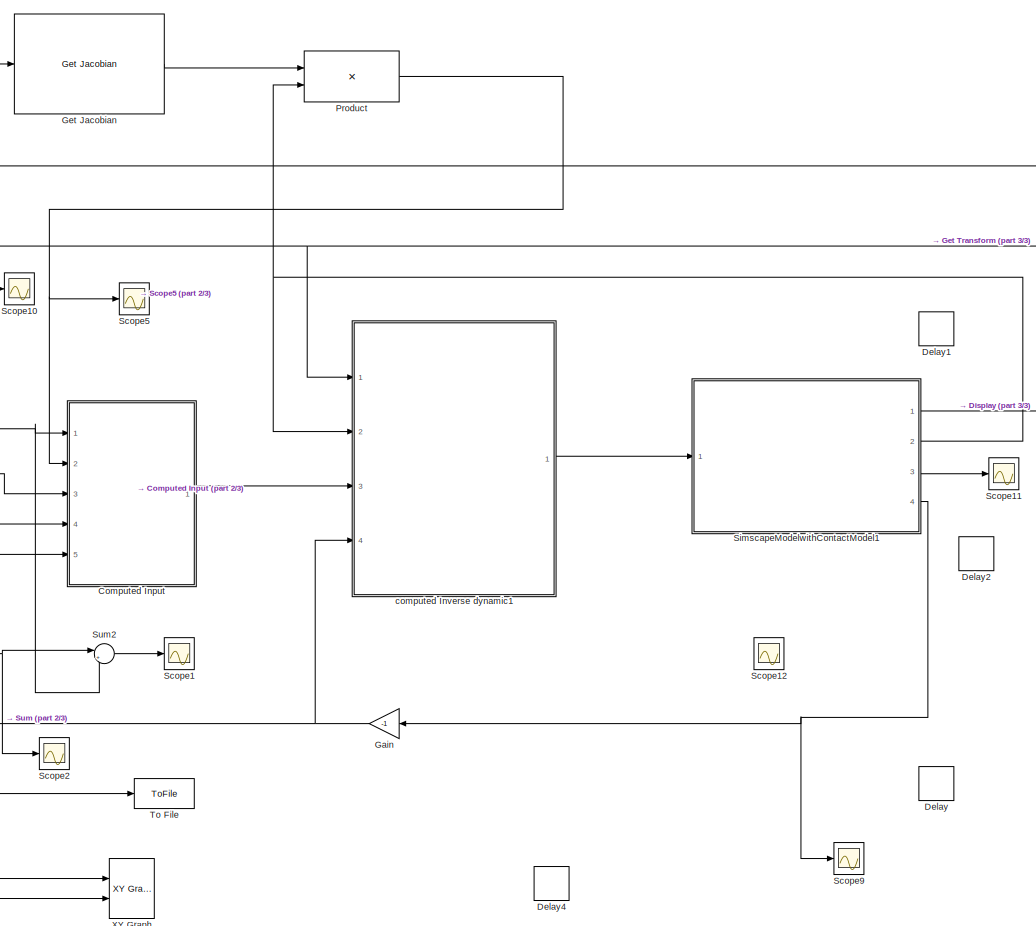
[diagram: root canvas - part 1/3, center side, full height]
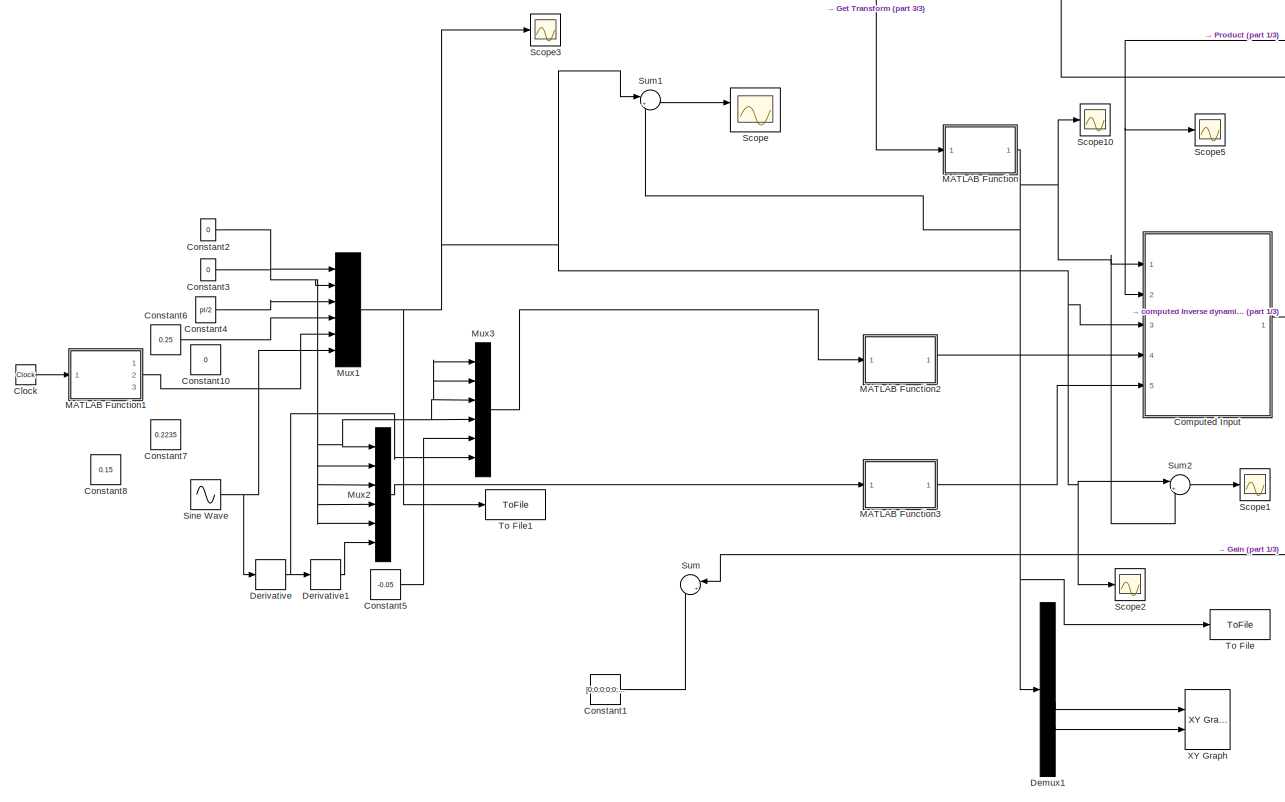
[diagram: root canvas - part 2/3, left side, full height]
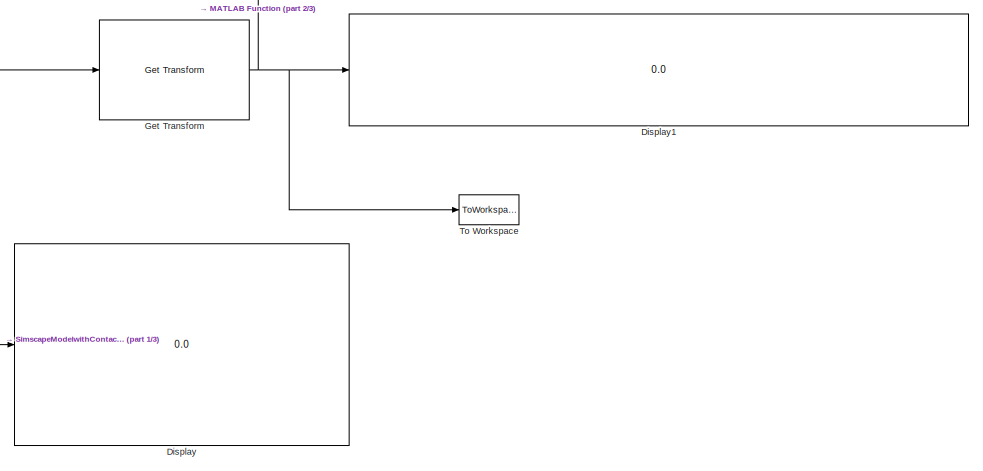
[diagram: root canvas - part 3/3, middle right region]
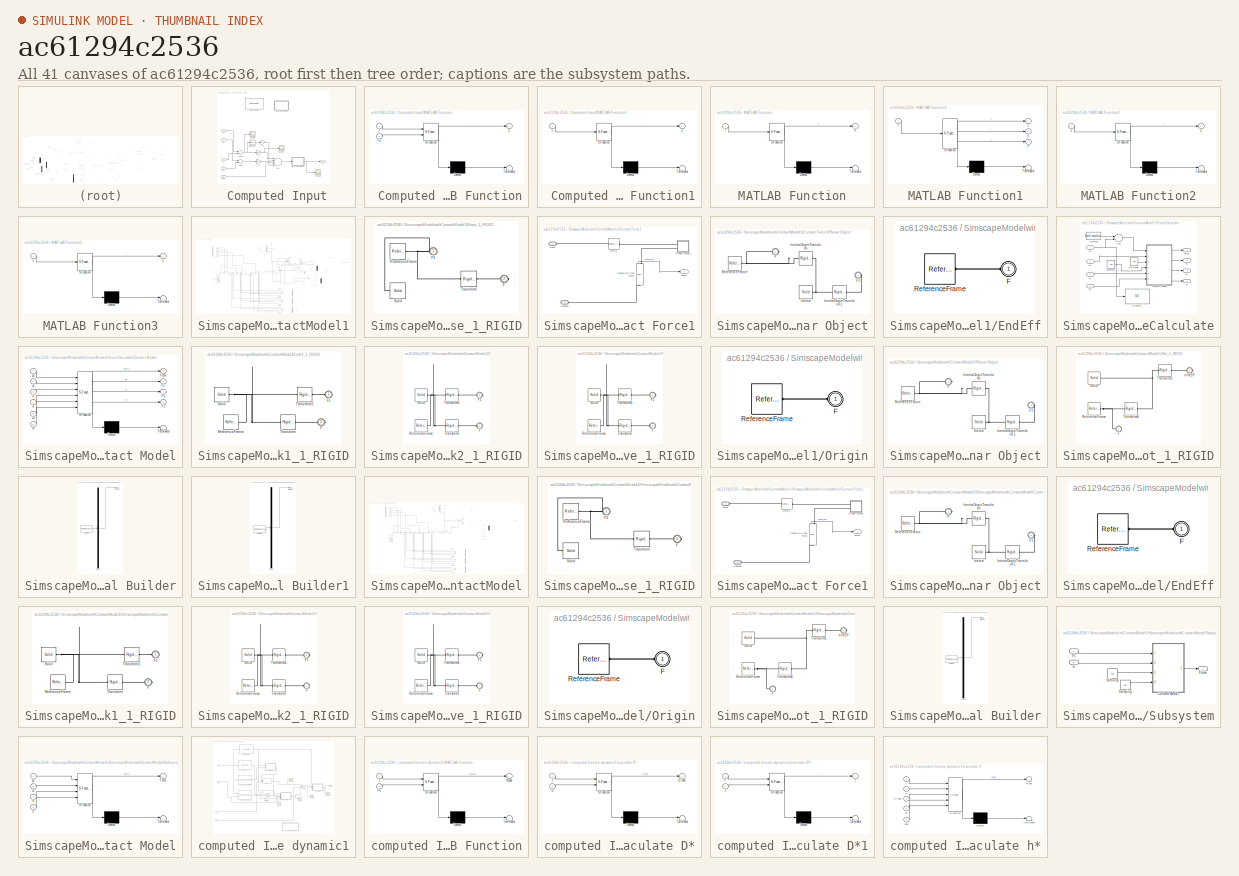
[diagram: thumbnail index - all 41 canvases of the model, root first then tree order]
MODEL slx_ac61294c2536
KIND model
CONFIG AbsTol = auto
CONFIG EnableMultiTasking = off
CONFIG FixedStep = 0.0005
CONFIG MaxStep = auto
CONFIG MinStep = auto
CONFIG RelTol = 1e-3
CONFIG SampleTimeConstraint = Unconstrained
CONFIG Solver = FixedStepAuto
CONFIG SolverName = FixedStepAuto
CONFIG StartTime = 0.0
CONFIG StopTime = 5
WORKSPACE source: MAT-file member
WORKSPACE Ball: struct (value not decoded)
BLOCK [SubSystem]  Computed Input
  Ports = [5, 1]
  RequestExecContextInheritance = off
BLOCK [Sum]  Computed Input/Add
  InputSameDT = off
  Inputs = ++++
  OutDataTypeStr = Inherit: Inherit via internal rule
  Ports = [4, 1]
  SaturateOnIntegerOverflow = off
BLOCK [Sum]  Computed Input/Add1
  InputSameDT = off
  Inputs = -+
  OutDataTypeStr = Inherit: Inherit via internal rule
  Ports = [2, 1]
  SaturateOnIntegerOverflow = off
BLOCK [Sum]  Computed Input/Add2
  InputSameDT = off
  Inputs = -+
  OutDataTypeStr = Inherit: Inherit via internal rule
  Ports = [2, 1]
  SaturateOnIntegerOverflow = off
BLOCK [Gain]  Computed Input/B
  Gain = 40
  OutDataTypeStr = Inherit: Inherit via internal rule
  ParamDataTypeStr = Inherit: Inherit via internal rule
  SaturateOnIntegerOverflow = off
BLOCK [Reference]  Computed Input/Get Jacobian  REF=robotmaniplib/Get Jacobian
  Commented = on
  Ports = [1, 1]
  SourceBlock = robotmaniplib/Get Jacobian
  SourceProductName = Robotics System Toolbox
  SourceType = Get Jacobian
BLOCK [Integrator]  Computed Input/Integrator
  Ports = [1, 1]
BLOCK [Gain]  Computed Input/K
  Gain = 400
  OutDataTypeStr = Inherit: Inherit via internal rule
  ParamDataTypeStr = Inherit: Inherit via internal rule
  SaturateOnIntegerOverflow = off
BLOCK [Gain]  Computed Input/K1
  Gain = 0
  OutDataTypeStr = Inherit: Inherit via internal rule
  ParamDataTypeStr = Inherit: Inherit via internal rule
  SaturateOnIntegerOverflow = off
BLOCK [SubSystem]  Computed Input/MATLAB Function
  Commented = on
  ErrorFcn = Stateflow.Translate.translate
  PermitHierarchicalResolution = ExplicitOnly
  Ports = [2, 1]
  RequestExecContextInheritance = off
  SFBlockType = MATLAB Function
  TreatAsAtomicUnit = on
BLOCK [Demux]  Computed Input/MATLAB Function/ Demux 
  Outputs = 1
  Ports = [1, 1]
BLOCK [S-Function]  Computed Input/MATLAB Function/ SFunction 
  EnableBusSupport = on
  FunctionName = sf_sfun
  PortCounts = [2 2]
  Ports = [2, 2]
  SFcnIsStateOwnerBlock = off
  SFunctionDeploymentMode = off
  Tag = Stateflow S-Function Computed_Torque_Control 5
BLOCK [Terminator]  Computed Input/MATLAB Function/ Terminator 
BLOCK [Inport]  Computed Input/MATLAB Function/Fe
  IconDisplay = Port number
  Port = 2
BLOCK [Inport]  Computed Input/MATLAB Function/J
  IconDisplay = Port number
BLOCK [Outport]  Computed Input/MATLAB Function/y
  IconDisplay = Port number
BLOCK [SubSystem]  Computed Input/MATLAB Function1
  ErrorFcn = Stateflow.Translate.translate
  PermitHierarchicalResolution = ExplicitOnly
  Ports = [1, 1]
  RequestExecContextInheritance = off
  SFBlockType = MATLAB Function
  TreatAsAtomicUnit = on
BLOCK [Demux]  Computed Input/MATLAB Function1/ Demux 
  Outputs = 1
  Ports = [1, 1]
BLOCK [S-Function]  Computed Input/MATLAB Function1/ SFunction 
  EnableBusSupport = on
  FunctionName = sf_sfun
  PortCounts = [1 2]
  Ports = [1, 2]
  SFcnIsStateOwnerBlock = off
  SFunctionDeploymentMode = off
  Tag = Stateflow S-Function Computed_Torque_Control 13
BLOCK [Terminator]  Computed Input/MATLAB Function1/ Terminator 
BLOCK [Inport]  Computed Input/MATLAB Function1/u
  IconDisplay = Port number
BLOCK [Outport]  Computed Input/MATLAB Function1/y
  IconDisplay = Port number
BLOCK [Scope]  Computed Input/Scope
  Floating = off
  NumInputPorts = 1
  Ports = [1]
  ScopeSpecificationString = Simulink.scopes.TimeScopeBlockCfg('CurrentConfiguration', extmgr.ConfigurationSet(extmgr.Configuration('Core','General UI',true),extmgr.Configuration('Core','Source UI',true),extmgr.Configuration('Sources','WiredSimulink',true,'DataLoggingVariableName','ScopeData2'),extmgr.Configuration('Visuals','Time Domain',true,'SerializedDisplays',{struct('MinYLimReal','-0.00066','MaxYLimReal','0.00563','YLab...<+1464ch>
BLOCK [Scope]  Computed Input/Scope1
  Floating = off
  NumInputPorts = 1
  Ports = [1]
  ScopeSpecificationString = Simulink.scopes.TimeScopeBlockCfg('CurrentConfiguration', extmgr.ConfigurationSet(extmgr.Configuration('Core','General UI',true),extmgr.Configuration('Core','Source UI',true),extmgr.Configuration('Sources','WiredSimulink',true,'DataLoggingVariableName','ScopeData9'),extmgr.Configuration('Visuals','Time Domain',true,'SerializedDisplays',{struct('MinYLimReal','-145.01247','MaxYLimReal','79.64291','Y...<+1429ch>
BLOCK [Scope]  Computed Input/Scope3
  Floating = off
  NumInputPorts = 1
  Ports = [1]
  ScopeSpecificationString = Simulink.scopes.TimeScopeBlockCfg('CurrentConfiguration', extmgr.ConfigurationSet(extmgr.Configuration('Core','General UI',true),extmgr.Configuration('Core','Source UI',true),extmgr.Configuration('Sources','WiredSimulink',true,'DataLoggingVariableName','ScopeData9'),extmgr.Configuration('Visuals','Time Domain',true,'SerializedDisplays',{struct('MinYLimReal','-62.49943','MaxYLimReal','62.50134','YL...<+1546ch>
BLOCK [Outport]  Computed Input/U
  IconDisplay = Port number
BLOCK [Inport]  Computed Input/X
  IconDisplay = Port number
BLOCK [Inport]  Computed Input/Xr
  IconDisplay = Port number
  Port = 3
BLOCK [Inport]  Computed Input/dX
  IconDisplay = Port number
  Port = 2
BLOCK [Inport]  Computed Input/dXr
  IconDisplay = Port number
  Port = 4
BLOCK [Inport]  Computed Input/ddXr
  IconDisplay = Port number
  Port = 5
BLOCK [Clock] Clock
BLOCK [Constant] Constant1
  Value = [0;0;0;0;0;0]
  VectorParams1D = off
BLOCK [Constant] Constant10
  Value = 0
BLOCK [Constant] Constant2
  Value = 0
BLOCK [Constant] Constant3
  Value = 0
BLOCK [Constant] Constant4
  Value = pi/2
BLOCK [Constant] Constant5
  Value = -0.05
  VectorParams1D = off
BLOCK [Constant] Constant6
  Value = 0.25
BLOCK [Constant] Constant7
  Value = 0.2235
BLOCK [Constant] Constant8
  Value = 0.15
BLOCK [Delay] Delay
  InputPortMap = u0
  Ports = [1, 1]
BLOCK [Delay] Delay1
  DelayLength = 1
  InitialCondition = [0;pi/2;0;0]
  InputPortMap = u0
  Ports = [1, 1]
BLOCK [Delay] Delay2
  DelayLength = 1
  InitialCondition = [0;0;0;0]
  InputPortMap = u0
  Ports = [1, 1]
BLOCK [Delay] Delay4
  DelayLength = 1
  InitialCondition = [0;0;0;0;0;0]
  InputPortMap = u0
  Ports = [1, 1]
BLOCK [Demux] Demux1
  DisplayOption = bar
  Outputs = 6
  Ports = [1, 6]
BLOCK [Derivative] Derivative
BLOCK [Derivative] Derivative1
BLOCK [Display] Display
  Decimation = 1
  Ports = [1]
BLOCK [Display] Display1
  Decimation = 1
  Format = long
  Ports = [1]
BLOCK [Gain] Gain
  Gain = -1
  OutDataTypeStr = Inherit: Inherit via internal rule
  ParamDataTypeStr = Inherit: Inherit via internal rule
  SaturateOnIntegerOverflow = off
BLOCK [Reference] Get Jacobian  REF=robotmaniplib/Get Jacobian
  Ports = [1, 1]
  SourceBlock = robotmaniplib/Get Jacobian
  SourceProductName = Robotics System Toolbox
  SourceType = Get Jacobian
BLOCK [Reference] Get Transform  REF=robotmaniplib/Get Transform
  Ports = [1, 1]
  SourceBlock = robotmaniplib/Get Transform
  SourceProductBaseCode = RO
  SourceProductName = Robotics System Toolbox
  SourceType = Get Transform
BLOCK [SubSystem] MATLAB Function
  ErrorFcn = Stateflow.Translate.translate
  PermitHierarchicalResolution = ExplicitOnly
  Ports = [1, 1]
  RequestExecContextInheritance = off
  SFBlockType = MATLAB Function
  TreatAsAtomicUnit = on
BLOCK [Demux] MATLAB Function/ Demux 
  Outputs = 1
  Ports = [1, 1]
BLOCK [S-Function] MATLAB Function/ SFunction 
  EnableBusSupport = on
  FunctionName = sf_sfun
  PortCounts = [1 2]
  Ports = [1, 2]
  SFcnIsStateOwnerBlock = off
  SFunctionDeploymentMode = off
  Tag = Stateflow S-Function Computed_Torque_Control 12
BLOCK [Terminator] MATLAB Function/ Terminator 
BLOCK [Inport] MATLAB Function/T
  IconDisplay = Port number
BLOCK [Outport] MATLAB Function/X
  IconDisplay = Port number
BLOCK [SubSystem] MATLAB Function1
  ErrorFcn = Stateflow.Translate.translate
  PermitHierarchicalResolution = ExplicitOnly
  Ports = [1, 3]
  RequestExecContextInheritance = off
  SFBlockType = MATLAB Function
  TreatAsAtomicUnit = on
BLOCK [Demux] MATLAB Function1/ Demux 
  Outputs = 1
  Ports = [1, 1]
BLOCK [S-Function] MATLAB Function1/ SFunction 
  EnableBusSupport = on
  FunctionName = sf_sfun
  PortCounts = [1 4]
  Ports = [1, 4]
  SFcnIsStateOwnerBlock = off
  SFunctionDeploymentMode = off
  Tag = Stateflow S-Function Computed_Torque_Control 14
BLOCK [Terminator] MATLAB Function1/ Terminator 
BLOCK [Inport] MATLAB Function1/t
  IconDisplay = Port number
BLOCK [Outport] MATLAB Function1/x
  IconDisplay = Port number
BLOCK [Outport] MATLAB Function1/y
  IconDisplay = Port number
  Port = 2
BLOCK [Outport] MATLAB Function1/z
  IconDisplay = Port number
  Port = 3
BLOCK [SubSystem] MATLAB Function2
  ErrorFcn = Stateflow.Translate.translate
  PermitHierarchicalResolution = ExplicitOnly
  Ports = [1, 1]
  RequestExecContextInheritance = off
  SFBlockType = MATLAB Function
  TreatAsAtomicUnit = on
BLOCK [Demux] MATLAB Function2/ Demux 
  Outputs = 1
  Ports = [1, 1]
BLOCK [S-Function] MATLAB Function2/ SFunction 
  EnableBusSupport = on
  FunctionName = sf_sfun
  PortCounts = [1 2]
  Ports = [1, 2]
  SFcnIsStateOwnerBlock = off
  SFunctionDeploymentMode = off
  Tag = Stateflow S-Function Computed_Torque_Control 2
BLOCK [Terminator] MATLAB Function2/ Terminator 
BLOCK [Inport] MATLAB Function2/u
  IconDisplay = Port number
BLOCK [Outport] MATLAB Function2/y
  IconDisplay = Port number
BLOCK [SubSystem] MATLAB Function3
  ErrorFcn = Stateflow.Translate.translate
  PermitHierarchicalResolution = ExplicitOnly
  Ports = [1, 1]
  RequestExecContextInheritance = off
  SFBlockType = MATLAB Function
  TreatAsAtomicUnit = on
BLOCK [Demux] MATLAB Function3/ Demux 
  Outputs = 1
  Ports = [1, 1]
BLOCK [S-Function] MATLAB Function3/ SFunction 
  EnableBusSupport = on
  FunctionName = sf_sfun
  PortCounts = [1 2]
  Ports = [1, 2]
  SFcnIsStateOwnerBlock = off
  SFunctionDeploymentMode = off
  Tag = Stateflow S-Function Computed_Torque_Control 1
BLOCK [Terminator] MATLAB Function3/ Terminator 
BLOCK [Inport] MATLAB Function3/u
  IconDisplay = Port number
BLOCK [Outport] MATLAB Function3/y
  IconDisplay = Port number
BLOCK [Mux] Mux1
  DisplayOption = bar
  Inputs = 6
  Ports = [6, 1]
BLOCK [Mux] Mux2
  DisplayOption = bar
  Inputs = 6
  Ports = [6, 1]
BLOCK [Mux] Mux3
  DisplayOption = bar
  Inputs = 6
  Ports = [6, 1]
BLOCK [Product] Product
  InputSameDT = off
  Multiplication = Matrix(*)
  OutDataTypeStr = Inherit: Inherit via internal rule
  Ports = [2, 1]
  RndMeth = Floor
  SaturateOnIntegerOverflow = off
BLOCK [Scope] Scope
  Floating = off
  NumInputPorts = 2
  Ports = [2]
  ScopeSpecificationString = Simulink.scopes.TimeScopeBlockCfg('CurrentConfiguration', extmgr.ConfigurationSet(extmgr.Configuration('Core','General UI',true),extmgr.Configuration('Core','Source UI',true),extmgr.Configuration('Sources','WiredSimulink',true,'DataLoggingVariableName','ScopeData1'),extmgr.Configuration('Visuals','Time Domain',true,'SerializedDisplays',{struct('MinYLimReal','-0.25144','MaxYLimReal','0.02797','YLab...<+1478ch>
BLOCK [Scope] Scope1
  Floating = off
  NumInputPorts = 1
  Ports = [1]
  ScopeSpecificationString = Simulink.scopes.TimeScopeBlockCfg('CurrentConfiguration', extmgr.ConfigurationSet(extmgr.Configuration('Core','General UI',true),extmgr.Configuration('Core','Source UI',true),extmgr.Configuration('Sources','WiredSimulink',true,'DataLoggingVariableName','ScopeData2'),extmgr.Configuration('Visuals','Time Domain',true,'SerializedDisplays',{struct('MinYLimReal','-0.25145','MaxYLimReal','0.02808','YLab...<+1464ch>
BLOCK [Scope] Scope10
  Floating = off
  NumInputPorts = 1
  Ports = [1]
  ScopeSpecificationString = Simulink.scopes.TimeScopeBlockCfg('CurrentConfiguration', extmgr.ConfigurationSet(extmgr.Configuration('Core','General UI',true),extmgr.Configuration('Core','Source UI',true),extmgr.Configuration('Sources','WiredSimulink',true,'DataLoggingVariableName','ScopeData3'),extmgr.Configuration('Visuals','Time Domain',true,'SerializedDisplays',{struct('MinYLimReal','-0.19635','MaxYLimReal','1.76715','YLab...<+1676ch>
BLOCK [Scope] Scope11
  Floating = off
  NumInputPorts = 1
  Ports = [1]
  ScopeSpecificationString = Simulink.scopes.TimeScopeBlockCfg('CurrentConfiguration', extmgr.ConfigurationSet(extmgr.Configuration('Core','General UI',true),extmgr.Configuration('Core','Source UI',true),extmgr.Configuration('Sources','WiredSimulink',true,'DataLoggingVariableName','ScopeData4'),extmgr.Configuration('Visuals','Time Domain',true,'SerializedDisplays',{struct('MinYLimReal','-366.11904','MaxYLimReal','307.74788','...<+1591ch>
BLOCK [Scope] Scope12
  Floating = off
  NumInputPorts = 1
  Ports = [1]
  ScopeSpecificationString = Simulink.scopes.TimeScopeBlockCfg('CurrentConfiguration', extmgr.ConfigurationSet(extmgr.Configuration('Core','General UI',true),extmgr.Configuration('Core','Source UI',true),extmgr.Configuration('Sources','WiredSimulink',true,'DataLoggingVariableName','ScopeData5'),extmgr.Configuration('Visuals','Time Domain',true,'SerializedDisplays',{struct('MinYLimReal','-366.11904','MaxYLimReal','307.74788','...<+1544ch>
BLOCK [Scope] Scope2
  Floating = off
  NumInputPorts = 1
  Ports = [1]
  ScopeSpecificationString = Simulink.scopes.TimeScopeBlockCfg('CurrentConfiguration', extmgr.ConfigurationSet(extmgr.Configuration('Core','General UI',true),extmgr.Configuration('Core','Source UI',true),extmgr.Configuration('Sources','WiredSimulink',true,'DataLoggingVariableName','ScopeData6'),extmgr.Configuration('Visuals','Time Domain',true,'SerializedDisplays',{struct('MinYLimReal','0.14984','MaxYLimReal','0.15011','YLabe...<+1577ch>
BLOCK [Scope] Scope3
  Floating = off
  NumInputPorts = 1
  Ports = [1]
  ScopeSpecificationString = Simulink.scopes.TimeScopeBlockCfg('CurrentConfiguration', extmgr.ConfigurationSet(extmgr.Configuration('Core','General UI',true),extmgr.Configuration('Core','Source UI',true),extmgr.Configuration('Sources','WiredSimulink',true,'DataLoggingVariableName','ScopeData7'),extmgr.Configuration('Visuals','Time Domain',true,'SerializedDisplays',{struct('MinYLimReal','-0.19635','MaxYLimReal','1.76715','YLab...<+1471ch>
BLOCK [Scope] Scope5
  Floating = off
  NumInputPorts = 1
  Ports = [1]
  ScopeSpecificationString = Simulink.scopes.TimeScopeBlockCfg('CurrentConfiguration', extmgr.ConfigurationSet(extmgr.Configuration('Core','General UI',true),extmgr.Configuration('Core','Source UI',true),extmgr.Configuration('Sources','WiredSimulink',true,'DataLoggingVariableName','ScopeData8'),extmgr.Configuration('Visuals','Time Domain',true,'SerializedDisplays',{struct('MinYLimReal','-2.29057','MaxYLimReal','1.14889','YLab...<+1526ch>
BLOCK [Scope] Scope9
  Floating = off
  NumInputPorts = 1
  Ports = [1]
  ScopeSpecificationString = Simulink.scopes.TimeScopeBlockCfg('CurrentConfiguration', extmgr.ConfigurationSet(extmgr.Configuration('Core','General UI',true),extmgr.Configuration('Core','Source UI',true),extmgr.Configuration('Sources','WiredSimulink',true,'DataLoggingVariableName','ScopeData9'),extmgr.Configuration('Visuals','Time Domain',true,'SerializedDisplays',{struct('MinYLimReal','-270698562296.53568','MaxYLimReal','565...<+2017ch>
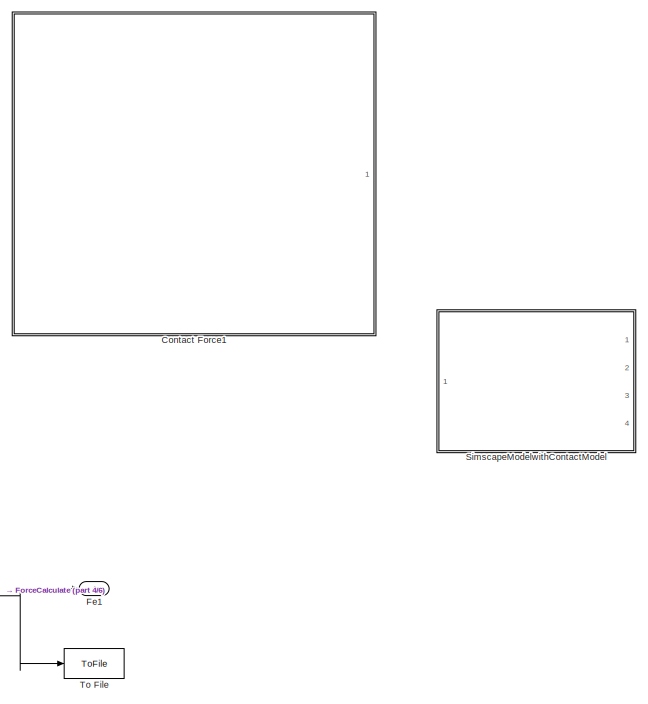
[diagram: SimscapeModelwithContactModel1 - part 1/6, top right region]
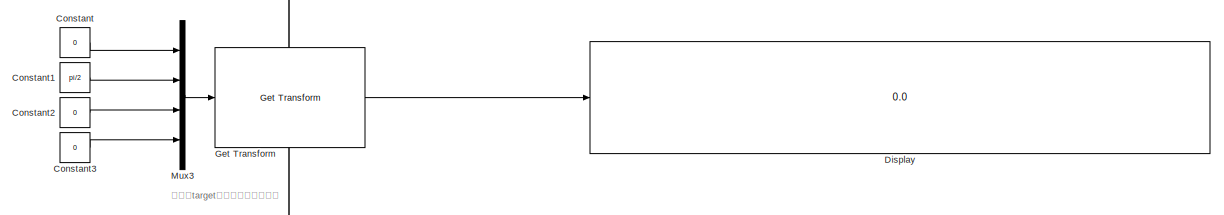
[diagram: SimscapeModelwithContactModel1 - part 2/6, top center region]
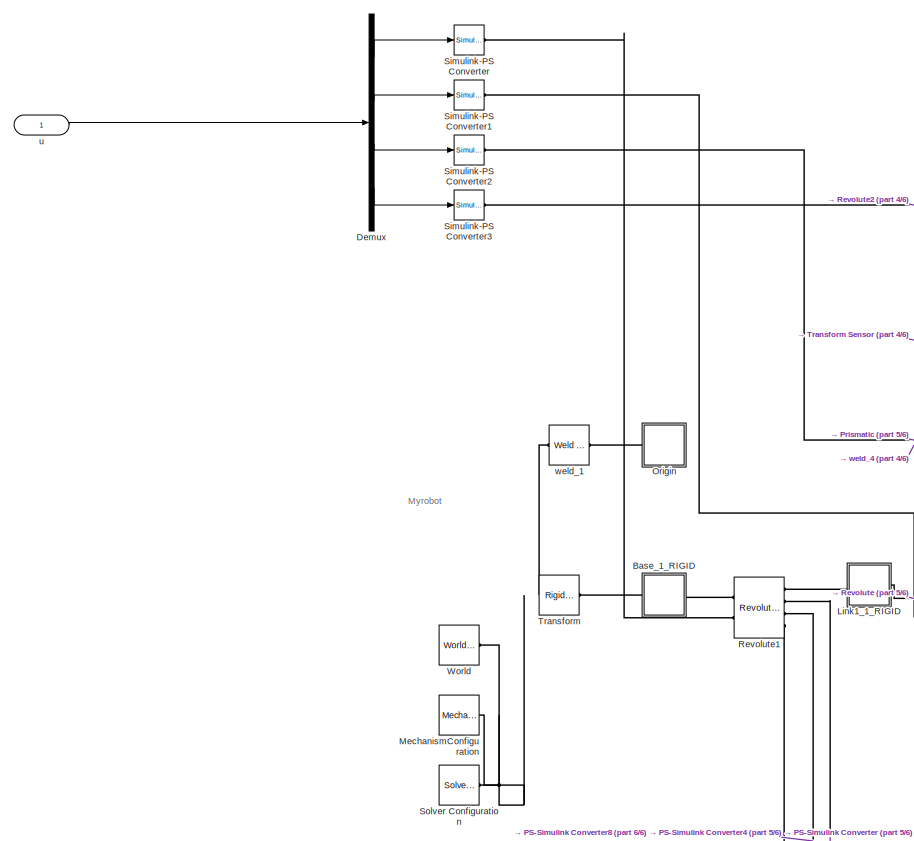
[diagram: SimscapeModelwithContactModel1 - part 3/6, middle left region]
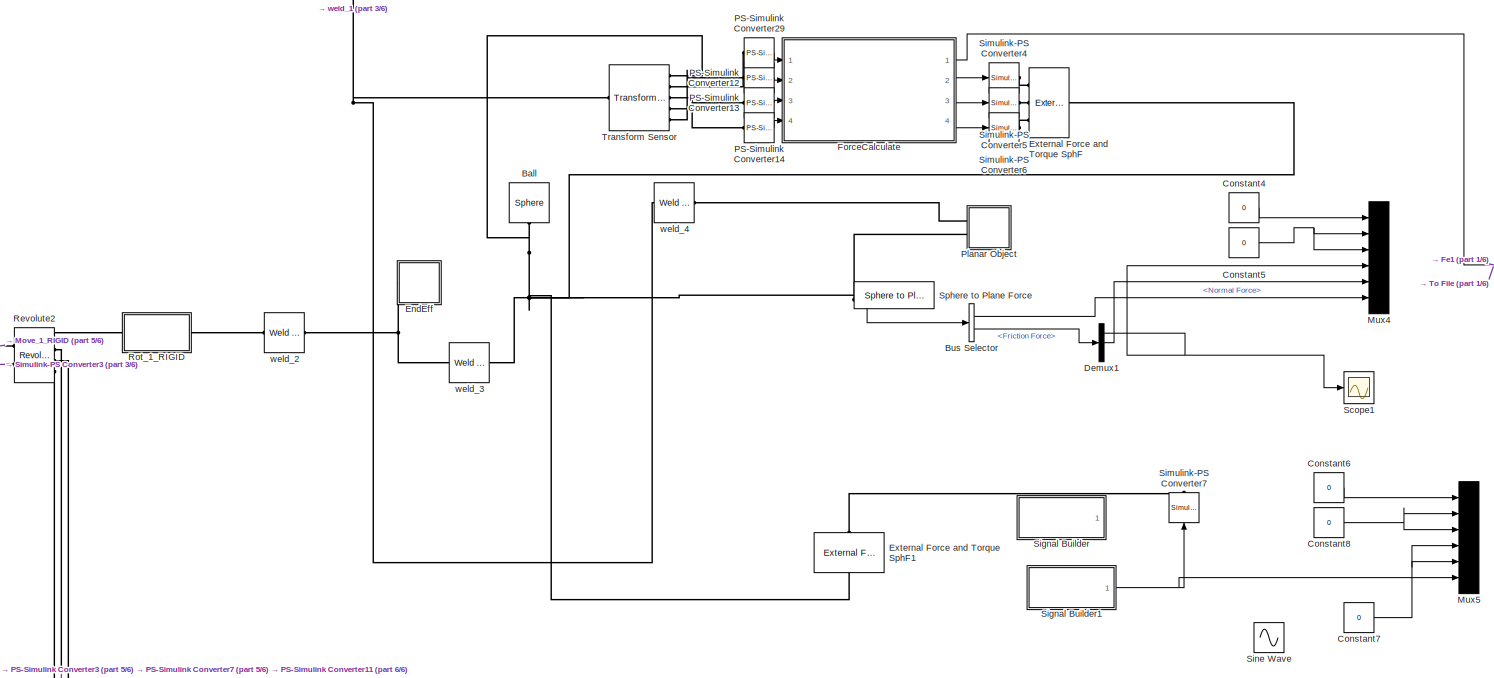
[diagram: SimscapeModelwithContactModel1 - part 4/6, central region]
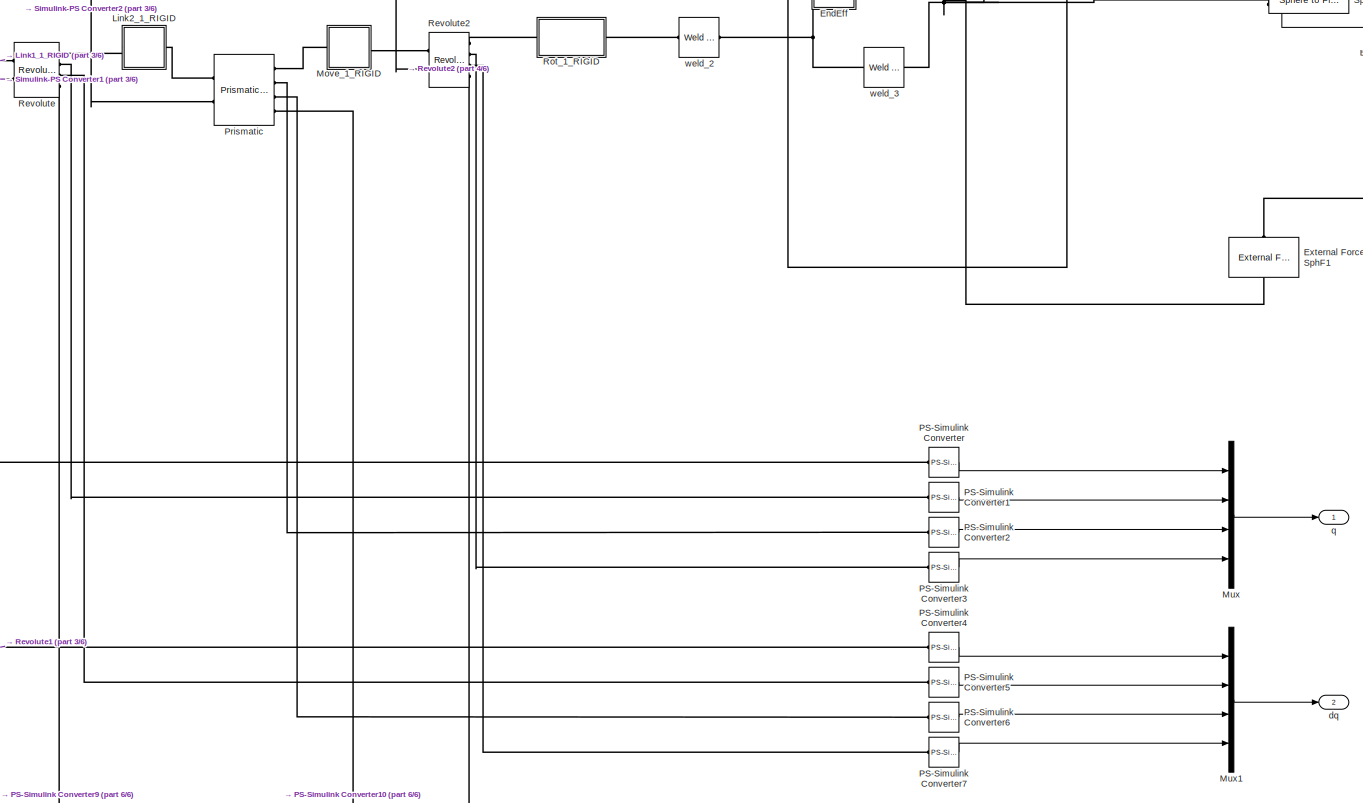
[diagram: SimscapeModelwithContactModel1 - part 5/6, central region]
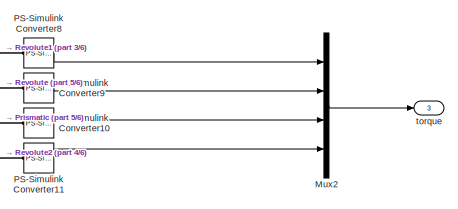
[diagram: SimscapeModelwithContactModel1 - part 6/6, bottom center region]
BLOCK [SubSystem] SimscapeModelwithContactModel1
  Ports = [1, 4]
  RequestExecContextInheritance = off
BLOCK [Reference] SimscapeModelwithContactModel1/Ball  REF=Parts_Lib/Sphere
  Ports = [0, 0, 0, 0, 0, 1]
  SourceBlock = Parts_Lib/Sphere
  SourceType = Sphere with Markings
  Tag = CustomStyle
BLOCK [SubSystem] SimscapeModelwithContactModel1/Base_1_RIGID
  Ports = [0, 0, 0, 0, 0, 1, 1]
  RequestExecContextInheritance = off
BLOCK [PMIOPort] SimscapeModelwithContactModel1/Base_1_RIGID/F
  Port = 2
  Side = Right
BLOCK [PMIOPort] SimscapeModelwithContactModel1/Base_1_RIGID/F1
  Side = Left
BLOCK [Reference] SimscapeModelwithContactModel1/Base_1_RIGID/ReferenceFrame  REF=sm_lib/Frames and
Transforms/Reference
Frame
  Ports = [0, 0, 0, 0, 0, 0, 1]
  SourceBlock = sm_lib/Frames and\nTransforms/Reference\nFrame
  SourceProductBaseCode = MS
  SourceProductName = Simscape Multibody
  SourceType = Reference\nFrame
BLOCK [Reference] SimscapeModelwithContactModel1/Base_1_RIGID/Solid  REF=sm_lib/Body Elements/Solid
  Ports = [0, 0, 0, 0, 0, 1]
  SourceBlock = sm_lib/Body Elements/Solid
  SourceProductBaseCode = MS
  SourceProductName = Simscape Multibody
  SourceType = Solid
BLOCK [Reference] SimscapeModelwithContactModel1/Base_1_RIGID/Transform  REF=sm_lib/Frames and
Transforms/Rigid
Transform
  Ports = [0, 0, 0, 0, 0, 1, 1]
  SourceBlock = sm_lib/Frames and\nTransforms/Rigid\nTransform
  SourceProductBaseCode = MS
  SourceProductName = Simscape Multibody
  SourceType = Rigid\nTransform
BLOCK [BusSelector] SimscapeModelwithContactModel1/Bus Selector
  Commented = on
  OutputAsBus = off
  OutputSignals = Normal Force,Friction Force
  Ports = [1, 2]
BLOCK [Constant] SimscapeModelwithContactModel1/Constant
  Value = 0
BLOCK [Constant] SimscapeModelwithContactModel1/Constant1
  Value = pi/2
BLOCK [Constant] SimscapeModelwithContactModel1/Constant2
  Value = 0
BLOCK [Constant] SimscapeModelwithContactModel1/Constant3
  Value = 0
BLOCK [Constant] SimscapeModelwithContactModel1/Constant4
  Value = 0
BLOCK [Constant] SimscapeModelwithContactModel1/Constant5
  Value = 0
BLOCK [Constant] SimscapeModelwithContactModel1/Constant6
  Commented = on
  Value = 0
BLOCK [Constant] SimscapeModelwithContactModel1/Constant7
  Commented = on
  Value = 0
BLOCK [Constant] SimscapeModelwithContactModel1/Constant8
  Commented = on
  Value = 0
BLOCK [SubSystem] SimscapeModelwithContactModel1/Contact Force1
  Commented = on
  Ports = [0, 1, 0, 0, 0, 2]
  RequestExecContextInheritance = off
BLOCK [Outport] SimscapeModelwithContactModel1/Contact Force1/Force
  IconDisplay = Port number
BLOCK [SubSystem] SimscapeModelwithContactModel1/Contact Force1/Planar Object
  Ports = [0, 0, 0, 0, 0, 2]
  RequestExecContextInheritance = off
BLOCK [PMIOPort] SimscapeModelwithContactModel1/Contact Force1/Planar Object/F
  Side = Left
BLOCK [PMIOPort] SimscapeModelwithContactModel1/Contact Force1/Planar Object/F1
  Port = 2
  Side = Left
BLOCK [Reference] SimscapeModelwithContactModel1/Contact Force1/Planar Object/Inertia  REF=sm_lib/Body Elements/Solid
  Ports = [0, 0, 0, 0, 0, 0, 1]
  SourceBlock = sm_lib/Body Elements/Solid
  SourceProductBaseCode = MS
  SourceProductName = Simscape Multibody
  SourceType = Solid
BLOCK [Reference] SimscapeModelwithContactModel1/Contact Force1/Planar Object/InertiaOriginTransform  REF=sm_lib/Frames and
Transforms/Rigid
Transform
  Ports = [0, 0, 0, 0, 0, 1, 1]
  SourceBlock = sm_lib/Frames and\nTransforms/Rigid\nTransform
  SourceProductBaseCode = MS
  SourceProductName = Simscape Multibody
  SourceType = Rigid\nTransform
BLOCK [Reference] SimscapeModelwithContactModel1/Contact Force1/Planar Object/InertiaOriginTransform1  REF=sm_lib/Frames and
Transforms/Rigid
Transform
  Ports = [0, 0, 0, 0, 0, 1, 1]
  SourceBlock = sm_lib/Frames and\nTransforms/Rigid\nTransform
  SourceProductBaseCode = MS
  SourceProductName = Simscape Multibody
  SourceType = Rigid\nTransform
BLOCK [Reference] SimscapeModelwithContactModel1/Contact Force1/Planar Object/ReferenceFrame  REF=sm_lib/Frames and
Transforms/Reference
Frame
  Ports = [0, 0, 0, 0, 0, 0, 1]
  SourceBlock = sm_lib/Frames and\nTransforms/Reference\nFrame
  SourceProductBaseCode = MS
  SourceProductName = Simscape Multibody
  SourceType = Reference\nFrame
BLOCK [PMIOPort] SimscapeModelwithContactModel1/Contact Force1/SphFace
  Side = Left
BLOCK [Reference] SimscapeModelwithContactModel1/Contact Force1/Sphere to Plane Force  REF=Contact_Forces_Lib/3D/Sphere to Plane Force
  Ports = [0, 1, 0, 0, 0, 1, 1]
  SourceBlock = Contact_Forces_Lib/3D/Sphere to Plane Force
  SourceProductName = Simscape Multibody Contact Forces Library
  SourceType = Sphere to Plane Force
BLOCK [PMIOPort] SimscapeModelwithContactModel1/Contact Force1/plate
  Port = 2
  Side = Left
BLOCK [Reference] SimscapeModelwithContactModel1/Contact Force1/weld_3  REF=sm_lib/Joints/Weld Joint
  Ports = [0, 0, 0, 0, 0, 1, 1]
  SourceBlock = sm_lib/Joints/Weld Joint
  SourceProductBaseCode = MS
  SourceProductName = Simscape Multibody
  SourceType = Weld Joint
BLOCK [Demux] SimscapeModelwithContactModel1/Demux
  DisplayOption = bar
  Ports = [1, 4]
BLOCK [Demux] SimscapeModelwithContactModel1/Demux1
  Commented = on
  DisplayOption = bar
  Outputs = 3
  Ports = [1, 3]
BLOCK [Display] SimscapeModelwithContactModel1/Display
  Decimation = 1
  Format = long
  Ports = [1]
BLOCK [SubSystem] SimscapeModelwithContactModel1/EndEff
  Ports = [0, 0, 0, 0, 0, 1]
  RequestExecContextInheritance = off
BLOCK [PMIOPort] SimscapeModelwithContactModel1/EndEff/F
  Side = Left
BLOCK [Reference] SimscapeModelwithContactModel1/EndEff/ReferenceFrame  REF=sm_lib/Frames and
Transforms/Reference
Frame
  Ports = [0, 0, 0, 0, 0, 0, 1]
  SourceBlock = sm_lib/Frames and\nTransforms/Reference\nFrame
  SourceProductBaseCode = MS
  SourceProductName = Simscape Multibody
  SourceType = Reference\nFrame
BLOCK [Reference] SimscapeModelwithContactModel1/External Force and Torque SphF  REF=sm_lib/Forces and
Torques/External Force
and Torque
  Ports = [0, 0, 0, 0, 0, 3, 1]
  SourceBlock = sm_lib/Forces and\nTorques/External Force\nand Torque
  SourceProductBaseCode = MS
  SourceProductName = Simscape Multibody
  SourceType = External Force\nand Torque
BLOCK [Reference] SimscapeModelwithContactModel1/External Force and Torque SphF1  REF=sm_lib/Forces and
Torques/External Force
and Torque
  Commented = on
  Ports = [0, 0, 0, 0, 0, 1, 1]
  SourceBlock = sm_lib/Forces and\nTorques/External Force\nand Torque
  SourceProductBaseCode = MS
  SourceProductName = Simscape Multibody
  SourceType = External Force\nand Torque
BLOCK [Outport] SimscapeModelwithContactModel1/Fe1
  IconDisplay = Port number
  Port = 4
BLOCK [SubSystem] SimscapeModelwithContactModel1/ForceCalculate
  Ports = [4, 4]
  RequestExecContextInheritance = off
BLOCK [Sum] SimscapeModelwithContactModel1/ForceCalculate/Add
  InputSameDT = off
  Inputs = -+
  OutDataTypeStr = Inherit: Inherit via internal rule
  Ports = [2, 1]
  SaturateOnIntegerOverflow = off
BLOCK [Constant] SimscapeModelwithContactModel1/ForceCalculate/Constant
  Value = Ball.radius
BLOCK [SubSystem] SimscapeModelwithContactModel1/ForceCalculate/Contact Model
  ErrorFcn = Stateflow.Translate.translate
  PermitHierarchicalResolution = ExplicitOnly
  Ports = [6, 4]
  RequestExecContextInheritance = off
  SFBlockType = MATLAB Function
  TreatAsAtomicUnit = on
BLOCK [Demux] SimscapeModelwithContactModel1/ForceCalculate/Contact Model/ Demux 
  Outputs = 1
  Ports = [1, 1]
BLOCK [S-Function] SimscapeModelwithContactModel1/ForceCalculate/Contact Model/ SFunction 
  EnableBusSupport = on
  FunctionName = sf_sfun
  PortCounts = [6 5]
  Ports = [6, 5]
  SFcnIsStateOwnerBlock = off
  SFunctionDeploymentMode = off
  Tag = Stateflow S-Function Computed_Torque_Control 7
BLOCK [Terminator] SimscapeModelwithContactModel1/ForceCalculate/Contact Model/ Terminator 
BLOCK [Outport] SimscapeModelwithContactModel1/ForceCalculate/Contact Model/Force
  IconDisplay = Port number
BLOCK [Outport] SimscapeModelwithContactModel1/ForceCalculate/Contact Model/Fx
  IconDisplay = Port number
  Port = 2
BLOCK [Outport] SimscapeModelwithContactModel1/ForceCalculate/Contact Model/Fy
  IconDisplay = Port number
  Port = 3
BLOCK [Outport] SimscapeModelwithContactModel1/ForceCalculate/Contact Model/Fz
  IconDisplay = Port number
  Port = 4
BLOCK [Inport] SimscapeModelwithContactModel1/ForceCalculate/Contact Model/b
  IconDisplay = Port number
  Port = 4
BLOCK [Inport] SimscapeModelwithContactModel1/ForceCalculate/Contact Model/k
  IconDisplay = Port number
  Port = 3
BLOCK [Inport] SimscapeModelwithContactModel1/ForceCalculate/Contact Model/pZ
  IconDisplay = Port number
BLOCK [Inport] SimscapeModelwithContactModel1/ForceCalculate/Contact Model/vX
  IconDisplay = Port number
  Port = 5
BLOCK [Inport] SimscapeModelwithContactModel1/ForceCalculate/Contact Model/vY
  IconDisplay = Port number
  Port = 6
BLOCK [Inport] SimscapeModelwithContactModel1/ForceCalculate/Contact Model/vZ
  IconDisplay = Port number
  Port = 2
BLOCK [Constant] SimscapeModelwithContactModel1/ForceCalculate/Damping
  Value = 100
BLOCK [Display] SimscapeModelwithContactModel1/ForceCalculate/Display1
  Decimation = 1
  Format = long
  Ports = [1]
BLOCK [Outport] SimscapeModelwithContactModel1/ForceCalculate/Force
  IconDisplay = Port number
BLOCK [Outport] SimscapeModelwithContactModel1/ForceCalculate/Fx
  IconDisplay = Port number
  Port = 2
BLOCK [Outport] SimscapeModelwithContactModel1/ForceCalculate/Fy
  IconDisplay = Port number
  Port = 3
BLOCK [Outport] SimscapeModelwithContactModel1/ForceCalculate/Fz
  IconDisplay = Port number
  Port = 4
BLOCK [Constant] SimscapeModelwithContactModel1/ForceCalculate/Stiffness
  Value = 1e5
BLOCK [Inport] SimscapeModelwithContactModel1/ForceCalculate/pZ
  IconDisplay = Port number
BLOCK [Inport] SimscapeModelwithContactModel1/ForceCalculate/vX
  IconDisplay = Port number
  Port = 3
BLOCK [Inport] SimscapeModelwithContactModel1/ForceCalculate/vY
  IconDisplay = Port number
  Port = 4
BLOCK [Inport] SimscapeModelwithContactModel1/ForceCalculate/vZ
  IconDisplay = Port number
  Port = 2
BLOCK [Reference] SimscapeModelwithContactModel1/Get Transform  REF=robotmaniplib/Get Transform
  Ports = [1, 1]
  SourceBlock = robotmaniplib/Get Transform
  SourceProductBaseCode = RO
  SourceProductName = Robotics System Toolbox
  SourceType = Get Transform
BLOCK [SubSystem] SimscapeModelwithContactModel1/Link1_1_RIGID
  Ports = [0, 0, 0, 0, 0, 1, 1]
  RequestExecContextInheritance = off
BLOCK [PMIOPort] SimscapeModelwithContactModel1/Link1_1_RIGID/F
  Port = 2
  Side = Right
BLOCK [PMIOPort] SimscapeModelwithContactModel1/Link1_1_RIGID/F1
  Side = Left
BLOCK [Reference] SimscapeModelwithContactModel1/Link1_1_RIGID/ReferenceFrame  REF=sm_lib/Frames and
Transforms/Reference
Frame
  Ports = [0, 0, 0, 0, 0, 0, 1]
  SourceBlock = sm_lib/Frames and\nTransforms/Reference\nFrame
  SourceProductBaseCode = MS
  SourceProductName = Simscape Multibody
  SourceType = Reference\nFrame
BLOCK [Reference] SimscapeModelwithContactModel1/Link1_1_RIGID/Solid  REF=sm_lib/Body Elements/Solid
  Ports = [0, 0, 0, 0, 0, 0, 1]
  SourceBlock = sm_lib/Body Elements/Solid
  SourceProductBaseCode = MS
  SourceProductName = Simscape Multibody
  SourceType = Solid
BLOCK [Reference] SimscapeModelwithContactModel1/Link1_1_RIGID/Transform  REF=sm_lib/Frames and
Transforms/Rigid
Transform
  Ports = [0, 0, 0, 0, 0, 1, 1]
  SourceBlock = sm_lib/Frames and\nTransforms/Rigid\nTransform
  SourceProductBaseCode = MS
  SourceProductName = Simscape Multibody
  SourceType = Rigid\nTransform
BLOCK [Reference] SimscapeModelwithContactModel1/Link1_1_RIGID/Transform1  REF=sm_lib/Frames and
Transforms/Rigid
Transform
  Ports = [0, 0, 0, 0, 0, 1, 1]
  SourceBlock = sm_lib/Frames and\nTransforms/Rigid\nTransform
  SourceProductBaseCode = MS
  SourceProductName = Simscape Multibody
  SourceType = Rigid\nTransform
BLOCK [SubSystem] SimscapeModelwithContactModel1/Link2_1_RIGID
  Ports = [0, 0, 0, 0, 0, 1, 1]
  RequestExecContextInheritance = off
BLOCK [PMIOPort] SimscapeModelwithContactModel1/Link2_1_RIGID/F
  Side = Left
BLOCK [PMIOPort] SimscapeModelwithContactModel1/Link2_1_RIGID/F1
  Port = 2
  Side = Right
BLOCK [Reference] SimscapeModelwithContactModel1/Link2_1_RIGID/ReferenceFrame  REF=sm_lib/Frames and
Transforms/Reference
Frame
  Ports = [0, 0, 0, 0, 0, 0, 1]
  SourceBlock = sm_lib/Frames and\nTransforms/Reference\nFrame
  SourceProductBaseCode = MS
  SourceProductName = Simscape Multibody
  SourceType = Reference\nFrame
BLOCK [Reference] SimscapeModelwithContactModel1/Link2_1_RIGID/Solid  REF=sm_lib/Body Elements/Solid
  Ports = [0, 0, 0, 0, 0, 0, 1]
  SourceBlock = sm_lib/Body Elements/Solid
  SourceProductBaseCode = MS
  SourceProductName = Simscape Multibody
  SourceType = Solid
BLOCK [Reference] SimscapeModelwithContactModel1/Link2_1_RIGID/Transform  REF=sm_lib/Frames and
Transforms/Rigid
Transform
  Ports = [0, 0, 0, 0, 0, 1, 1]
  SourceBlock = sm_lib/Frames and\nTransforms/Rigid\nTransform
  SourceProductBaseCode = MS
  SourceProductName = Simscape Multibody
  SourceType = Rigid\nTransform
BLOCK [Reference] SimscapeModelwithContactModel1/Link2_1_RIGID/Transform1  REF=sm_lib/Frames and
Transforms/Rigid
Transform
  Ports = [0, 0, 0, 0, 0, 1, 1]
  SourceBlock = sm_lib/Frames and\nTransforms/Rigid\nTransform
  SourceProductBaseCode = MS
  SourceProductName = Simscape Multibody
  SourceType = Rigid\nTransform
BLOCK [Reference] SimscapeModelwithContactModel1/MechanismConfiguration  REF=sm_lib/Utilities/Mechanism
Configuration
  Ports = [0, 0, 0, 0, 0, 0, 1]
  SourceBlock = sm_lib/Utilities/Mechanism\nConfiguration
  SourceProductBaseCode = MS
  SourceProductName = Simscape Multibody
  SourceType = Mechanism\nConfiguration
BLOCK [SubSystem] SimscapeModelwithContactModel1/Move_1_RIGID
  Ports = [0, 0, 0, 0, 0, 1, 1]
  RequestExecContextInheritance = off
BLOCK [PMIOPort] SimscapeModelwithContactModel1/Move_1_RIGID/F
  Side = Left
BLOCK [PMIOPort] SimscapeModelwithContactModel1/Move_1_RIGID/F1
  Port = 2
  Side = Right
BLOCK [Reference] SimscapeModelwithContactModel1/Move_1_RIGID/ReferenceFrame  REF=sm_lib/Frames and
Transforms/Reference
Frame
  Ports = [0, 0, 0, 0, 0, 0, 1]
  SourceBlock = sm_lib/Frames and\nTransforms/Reference\nFrame
  SourceProductBaseCode = MS
  SourceProductName = Simscape Multibody
  SourceType = Reference\nFrame
BLOCK [Reference] SimscapeModelwithContactModel1/Move_1_RIGID/Solid  REF=sm_lib/Body Elements/Solid
  Ports = [0, 0, 0, 0, 0, 0, 1]
  SourceBlock = sm_lib/Body Elements/Solid
  SourceProductBaseCode = MS
  SourceProductName = Simscape Multibody
  SourceType = Solid
BLOCK [Reference] SimscapeModelwithContactModel1/Move_1_RIGID/Transform  REF=sm_lib/Frames and
Transforms/Rigid
Transform
  Ports = [0, 0, 0, 0, 0, 1, 1]
  SourceBlock = sm_lib/Frames and\nTransforms/Rigid\nTransform
  SourceProductBaseCode = MS
  SourceProductName = Simscape Multibody
  SourceType = Rigid\nTransform
BLOCK [Reference] SimscapeModelwithContactModel1/Move_1_RIGID/Transform1  REF=sm_lib/Frames and
Transforms/Rigid
Transform
  Ports = [0, 0, 0, 0, 0, 1, 1]
  SourceBlock = sm_lib/Frames and\nTransforms/Rigid\nTransform
  SourceProductBaseCode = MS
  SourceProductName = Simscape Multibody
  SourceType = Rigid\nTransform
BLOCK [Mux] SimscapeModelwithContactModel1/Mux
  DisplayOption = bar
  Ports = [4, 1]
BLOCK [Mux] SimscapeModelwithContactModel1/Mux1
  DisplayOption = bar
  Ports = [4, 1]
BLOCK [Mux] SimscapeModelwithContactModel1/Mux2
  DisplayOption = bar
  Ports = [4, 1]
BLOCK [Mux] SimscapeModelwithContactModel1/Mux3
  DisplayOption = bar
  Ports = [4, 1]
BLOCK [Mux] SimscapeModelwithContactModel1/Mux4
  Commented = on
  DisplayOption = bar
  Inputs = 6
  Ports = [6, 1]
BLOCK [Mux] SimscapeModelwithContactModel1/Mux5
  Commented = on
  DisplayOption = bar
  Inputs = 6
  Ports = [6, 1]
BLOCK [SubSystem] SimscapeModelwithContactModel1/Origin
  Ports = [0, 0, 0, 0, 0, 1]
  RequestExecContextInheritance = off
BLOCK [PMIOPort] SimscapeModelwithContactModel1/Origin/F
  Side = Left
BLOCK [Reference] SimscapeModelwithContactModel1/Origin/ReferenceFrame  REF=sm_lib/Frames and
Transforms/Reference
Frame
  Ports = [0, 0, 0, 0, 0, 0, 1]
  SourceBlock = sm_lib/Frames and\nTransforms/Reference\nFrame
  SourceProductBaseCode = MS
  SourceProductName = Simscape Multibody
  SourceType = Reference\nFrame
BLOCK [Reference] SimscapeModelwithContactModel1/PS-Simulink Converter  REF=nesl_utility/PS-Simulink
Converter
  Ports = [0, 1, 0, 0, 0, 1]
  SourceBlock = nesl_utility/PS-Simulink\nConverter
  SourceProductBaseCode = SS
  SourceProductName = Simscape
  SourceType = PS-Simulink\nConverter
BLOCK [Reference] SimscapeModelwithContactModel1/PS-Simulink Converter1  REF=nesl_utility/PS-Simulink
Converter
  Ports = [0, 1, 0, 0, 0, 1]
  SourceBlock = nesl_utility/PS-Simulink\nConverter
  SourceProductBaseCode = SS
  SourceProductName = Simscape
  SourceType = PS-Simulink\nConverter
BLOCK [Reference] SimscapeModelwithContactModel1/PS-Simulink Converter10  REF=nesl_utility/PS-Simulink
Converter
  Ports = [0, 1, 0, 0, 0, 1]
  SourceBlock = nesl_utility/PS-Simulink\nConverter
  SourceProductBaseCode = SS
  SourceProductName = Simscape
  SourceType = PS-Simulink\nConverter
BLOCK [Reference] SimscapeModelwithContactModel1/PS-Simulink Converter11  REF=nesl_utility/PS-Simulink
Converter
  Ports = [0, 1, 0, 0, 0, 1]
  SourceBlock = nesl_utility/PS-Simulink\nConverter
  SourceProductBaseCode = SS
  SourceProductName = Simscape
  SourceType = PS-Simulink\nConverter
BLOCK [Reference] SimscapeModelwithContactModel1/PS-Simulink Converter12  REF=nesl_utility/PS-Simulink
Converter
  Ports = [0, 1, 0, 0, 0, 1]
  SourceBlock = nesl_utility/PS-Simulink\nConverter
  SourceProductBaseCode = SS
  SourceProductName = Simscape
  SourceType = PS-Simulink\nConverter
BLOCK [Reference] SimscapeModelwithContactModel1/PS-Simulink Converter13  REF=nesl_utility/PS-Simulink
Converter
  Ports = [0, 1, 0, 0, 0, 1]
  SourceBlock = nesl_utility/PS-Simulink\nConverter
  SourceProductBaseCode = SS
  SourceProductName = Simscape
  SourceType = PS-Simulink\nConverter
BLOCK [Reference] SimscapeModelwithContactModel1/PS-Simulink Converter14  REF=nesl_utility/PS-Simulink
Converter
  Ports = [0, 1, 0, 0, 0, 1]
  SourceBlock = nesl_utility/PS-Simulink\nConverter
  SourceProductBaseCode = SS
  SourceProductName = Simscape
  SourceType = PS-Simulink\nConverter
BLOCK [Reference] SimscapeModelwithContactModel1/PS-Simulink Converter2  REF=nesl_utility/PS-Simulink
Converter
  Ports = [0, 1, 0, 0, 0, 1]
  SourceBlock = nesl_utility/PS-Simulink\nConverter
  SourceProductBaseCode = SS
  SourceProductName = Simscape
  SourceType = PS-Simulink\nConverter
BLOCK [Reference] SimscapeModelwithContactModel1/PS-Simulink Converter29  REF=nesl_utility/PS-Simulink
Converter
  Ports = [0, 1, 0, 0, 0, 1]
  SourceBlock = nesl_utility/PS-Simulink\nConverter
  SourceProductBaseCode = SS
  SourceProductName = Simscape
  SourceType = PS-Simulink\nConverter
BLOCK [Reference] SimscapeModelwithContactModel1/PS-Simulink Converter3  REF=nesl_utility/PS-Simulink
Converter
  Ports = [0, 1, 0, 0, 0, 1]
  SourceBlock = nesl_utility/PS-Simulink\nConverter
  SourceProductBaseCode = SS
  SourceProductName = Simscape
  SourceType = PS-Simulink\nConverter
BLOCK [Reference] SimscapeModelwithContactModel1/PS-Simulink Converter4  REF=nesl_utility/PS-Simulink
Converter
  Ports = [0, 1, 0, 0, 0, 1]
  SourceBlock = nesl_utility/PS-Simulink\nConverter
  SourceProductBaseCode = SS
  SourceProductName = Simscape
  SourceType = PS-Simulink\nConverter
BLOCK [Reference] SimscapeModelwithContactModel1/PS-Simulink Converter5  REF=nesl_utility/PS-Simulink
Converter
  Ports = [0, 1, 0, 0, 0, 1]
  SourceBlock = nesl_utility/PS-Simulink\nConverter
  SourceProductBaseCode = SS
  SourceProductName = Simscape
  SourceType = PS-Simulink\nConverter
BLOCK [Reference] SimscapeModelwithContactModel1/PS-Simulink Converter6  REF=nesl_utility/PS-Simulink
Converter
  Ports = [0, 1, 0, 0, 0, 1]
  SourceBlock = nesl_utility/PS-Simulink\nConverter
  SourceProductBaseCode = SS
  SourceProductName = Simscape
  SourceType = PS-Simulink\nConverter
BLOCK [Reference] SimscapeModelwithContactModel1/PS-Simulink Converter7  REF=nesl_utility/PS-Simulink
Converter
  Ports = [0, 1, 0, 0, 0, 1]
  SourceBlock = nesl_utility/PS-Simulink\nConverter
  SourceProductBaseCode = SS
  SourceProductName = Simscape
  SourceType = PS-Simulink\nConverter
BLOCK [Reference] SimscapeModelwithContactModel1/PS-Simulink Converter8  REF=nesl_utility/PS-Simulink
Converter
  Ports = [0, 1, 0, 0, 0, 1]
  SourceBlock = nesl_utility/PS-Simulink\nConverter
  SourceProductBaseCode = SS
  SourceProductName = Simscape
  SourceType = PS-Simulink\nConverter
BLOCK [Reference] SimscapeModelwithContactModel1/PS-Simulink Converter9  REF=nesl_utility/PS-Simulink
Converter
  Ports = [0, 1, 0, 0, 0, 1]
  SourceBlock = nesl_utility/PS-Simulink\nConverter
  SourceProductBaseCode = SS
  SourceProductName = Simscape
  SourceType = PS-Simulink\nConverter
BLOCK [SubSystem] SimscapeModelwithContactModel1/Planar Object
  Ports = [0, 0, 0, 0, 0, 2]
  RequestExecContextInheritance = off
BLOCK [PMIOPort] SimscapeModelwithContactModel1/Planar Object/F
  Side = Left
BLOCK [PMIOPort] SimscapeModelwithContactModel1/Planar Object/F1
  Port = 2
  Side = Left
BLOCK [Reference] SimscapeModelwithContactModel1/Planar Object/Inertia  REF=sm_lib/Body Elements/Solid
  Ports = [0, 0, 0, 0, 0, 0, 1]
  SourceBlock = sm_lib/Body Elements/Solid
  SourceProductBaseCode = MS
  SourceProductName = Simscape Multibody
  SourceType = Solid
BLOCK [Reference] SimscapeModelwithContactModel1/Planar Object/InertiaOriginTransform  REF=sm_lib/Frames and
Transforms/Rigid
Transform
  Ports = [0, 0, 0, 0, 0, 1, 1]
  SourceBlock = sm_lib/Frames and\nTransforms/Rigid\nTransform
  SourceProductBaseCode = MS
  SourceProductName = Simscape Multibody
  SourceType = Rigid\nTransform
BLOCK [Reference] SimscapeModelwithContactModel1/Planar Object/InertiaOriginTransform1  REF=sm_lib/Frames and
Transforms/Rigid
Transform
  Ports = [0, 0, 0, 0, 0, 1, 1]
  SourceBlock = sm_lib/Frames and\nTransforms/Rigid\nTransform
  SourceProductBaseCode = MS
  SourceProductName = Simscape Multibody
  SourceType = Rigid\nTransform
BLOCK [Reference] SimscapeModelwithContactModel1/Planar Object/ReferenceFrame  REF=sm_lib/Frames and
Transforms/Reference
Frame
  Ports = [0, 0, 0, 0, 0, 0, 1]
  SourceBlock = sm_lib/Frames and\nTransforms/Reference\nFrame
  SourceProductBaseCode = MS
  SourceProductName = Simscape Multibody
  SourceType = Reference\nFrame
BLOCK [Reference] SimscapeModelwithContactModel1/Prismatic  REF=sm_lib/Joints/Prismatic
Joint
  Ports = [0, 0, 0, 0, 0, 2, 4]
  SourceBlock = sm_lib/Joints/Prismatic\nJoint
  SourceProductBaseCode = MS
  SourceProductName = Simscape Multibody
  SourceType = Prismatic\nJoint
BLOCK [Reference] SimscapeModelwithContactModel1/Revolute  REF=sm_lib/Joints/Revolute Joint
  Ports = [0, 0, 0, 0, 0, 2, 4]
  SourceBlock = sm_lib/Joints/Revolute Joint
  SourceProductBaseCode = MS
  SourceProductName = Simscape Multibody
  SourceType = Revolute Joint
BLOCK [Reference] SimscapeModelwithContactModel1/Revolute1  REF=sm_lib/Joints/Revolute Joint
  Ports = [0, 0, 0, 0, 0, 2, 4]
  SourceBlock = sm_lib/Joints/Revolute Joint
  SourceProductBaseCode = MS
  SourceProductName = Simscape Multibody
  SourceType = Revolute Joint
BLOCK [Reference] SimscapeModelwithContactModel1/Revolute2  REF=sm_lib/Joints/Revolute Joint
  Ports = [0, 0, 0, 0, 0, 2, 4]
  SourceBlock = sm_lib/Joints/Revolute Joint
  SourceProductBaseCode = MS
  SourceProductName = Simscape Multibody
  SourceType = Revolute Joint
BLOCK [SubSystem] SimscapeModelwithContactModel1/Rot_1_RIGID
  Ports = [0, 0, 0, 0, 0, 1, 1]
  RequestExecContextInheritance = off
BLOCK [PMIOPort] SimscapeModelwithContactModel1/Rot_1_RIGID/F
  Side = Left
BLOCK [Reference] SimscapeModelwithContactModel1/Rot_1_RIGID/ReferenceFrame  REF=sm_lib/Frames and
Transforms/Reference
Frame
  Ports = [0, 0, 0, 0, 0, 0, 1]
  SourceBlock = sm_lib/Frames and\nTransforms/Reference\nFrame
  SourceProductBaseCode = MS
  SourceProductName = Simscape Multibody
  SourceType = Reference\nFrame
BLOCK [Reference] SimscapeModelwithContactModel1/Rot_1_RIGID/Solid  REF=sm_lib/Body Elements/Solid
  Ports = [0, 0, 0, 0, 0, 0, 1]
  SourceBlock = sm_lib/Body Elements/Solid
  SourceProductBaseCode = MS
  SourceProductName = Simscape Multibody
  SourceType = Solid
BLOCK [Reference] SimscapeModelwithContactModel1/Rot_1_RIGID/Transform1  REF=sm_lib/Frames and
Transforms/Rigid
Transform
  Ports = [0, 0, 0, 0, 0, 1, 1]
  SourceBlock = sm_lib/Frames and\nTransforms/Rigid\nTransform
  SourceProductBaseCode = MS
  SourceProductName = Simscape Multibody
  SourceType = Rigid\nTransform
BLOCK [Reference] SimscapeModelwithContactModel1/Rot_1_RIGID/Transform8  REF=sm_lib/Frames and
Transforms/Rigid
Transform
  Ports = [0, 0, 0, 0, 0, 1, 1]
  SourceBlock = sm_lib/Frames and\nTransforms/Rigid\nTransform
  SourceProductBaseCode = MS
  SourceProductName = Simscape Multibody
  SourceType = Rigid\nTransform
BLOCK [PMIOPort] SimscapeModelwithContactModel1/Rot_1_RIGID/endEff
  Port = 2
  Side = Right
BLOCK [Scope] SimscapeModelwithContactModel1/Scope1
  Commented = on
  Floating = off
  NumInputPorts = 1
  Ports = [1]
  ScopeSpecificationString = Simulink.scopes.TimeScopeBlockCfg('CurrentConfiguration', extmgr.ConfigurationSet(extmgr.Configuration('Core','General UI',true),extmgr.Configuration('Core','Source UI',true),extmgr.Configuration('Sources','WiredSimulink',true,'DataLoggingVariableName','ScopeData16'),extmgr.Configuration('Visuals','Time Domain',true,'SerializedDisplays',{struct('MinYLimReal','-75.94983','MaxYLimReal','12.96218','Y...<+1428ch>
BLOCK [SubSystem] SimscapeModelwithContactModel1/Signal Builder
  ClipboardFcn = sigbuilder_block('clipboard');
  CloseFcn = sigbuilder_block('close');
  Commented = on
  ContinueFcn = sigbuilder_block('continue');
  CopyFcn = sigbuilder_block('copy');
  DeleteFcn = sigbuilder_block('delete');
  LoadFcn = sigbuilder_block('load');
  MaskHideContents = on
  ModelCloseFcn = sigbuilder_block('modelClose');
  NameChangeFcn = sigbuilder_block('namechange');
  OpenFcn = sigbuilder_block('open',[437.6 199.2 550.4 400 ]);
  PauseFcn = sigbuilder_block('pause');
  Ports = [0, 1]
  PreSaveFcn = sigbuilder_block('preSave');
  RequestExecContextInheritance = off
  StartFcn = sigbuilder_block('start');
  StopFcn = sigbuilder_block('stop');
  Tag = STV Subsys
BLOCK [Demux] SimscapeModelwithContactModel1/Signal Builder/Demux
  Outputs = 1
  Ports = [1, 1]
  Tag = STV Demux
BLOCK [FromWorkspace] SimscapeModelwithContactModel1/Signal Builder/FromWs
  SampleTime = 0
  Tag = STV FromWs
  VariableName = tuvar
  ZeroCross = on
BLOCK [Outport] SimscapeModelwithContactModel1/Signal Builder/Signal 1
  IconDisplay = Port number
  Tag = STV Outport
BLOCK [SubSystem] SimscapeModelwithContactModel1/Signal Builder1
  ClipboardFcn = sigbuilder_block('clipboard');
  CloseFcn = sigbuilder_block('close');
  Commented = on
  ContinueFcn = sigbuilder_block('continue');
  CopyFcn = sigbuilder_block('copy');
  DeleteFcn = sigbuilder_block('delete');
  LoadFcn = sigbuilder_block('load');
  MaskHideContents = on
  ModelCloseFcn = sigbuilder_block('modelClose');
  NameChangeFcn = sigbuilder_block('namechange');
  OpenFcn = sigbuilder_block('open',[437.6 199.2 550.4 400 ]);
  PauseFcn = sigbuilder_block('pause');
  Ports = [0, 1]
  PreSaveFcn = sigbuilder_block('preSave');
  RequestExecContextInheritance = off
  StartFcn = sigbuilder_block('start');
  StopFcn = sigbuilder_block('stop');
  Tag = STV Subsys
BLOCK [Demux] SimscapeModelwithContactModel1/Signal Builder1/Demux
  Outputs = 1
  Ports = [1, 1]
  Tag = STV Demux
BLOCK [FromWorkspace] SimscapeModelwithContactModel1/Signal Builder1/FromWs
  SampleTime = 0
  Tag = STV FromWs
  VariableName = tuvar
  ZeroCross = on
BLOCK [Outport] SimscapeModelwithContactModel1/Signal Builder1/Signal 1
  IconDisplay = Port number
  Tag = STV Outport
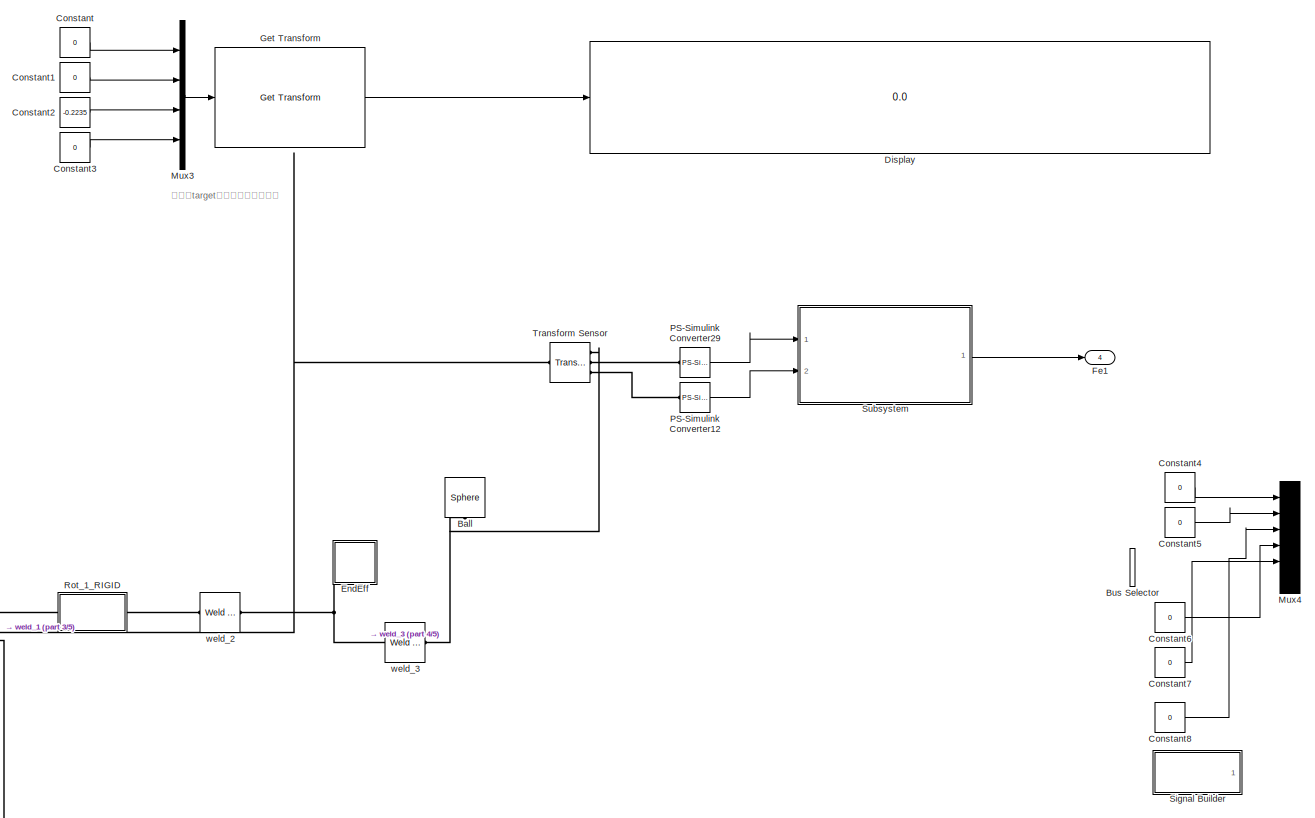
[diagram: SimscapeModelwithContactModel1/SimscapeModelwithContactModel - part 1/5, top center region]
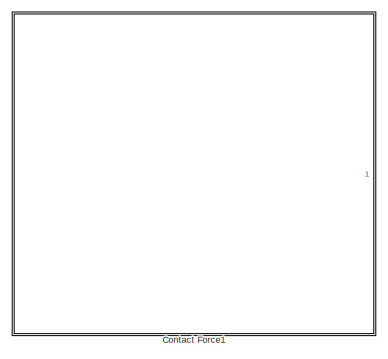
[diagram: SimscapeModelwithContactModel1/SimscapeModelwithContactModel - part 2/5, top right region]
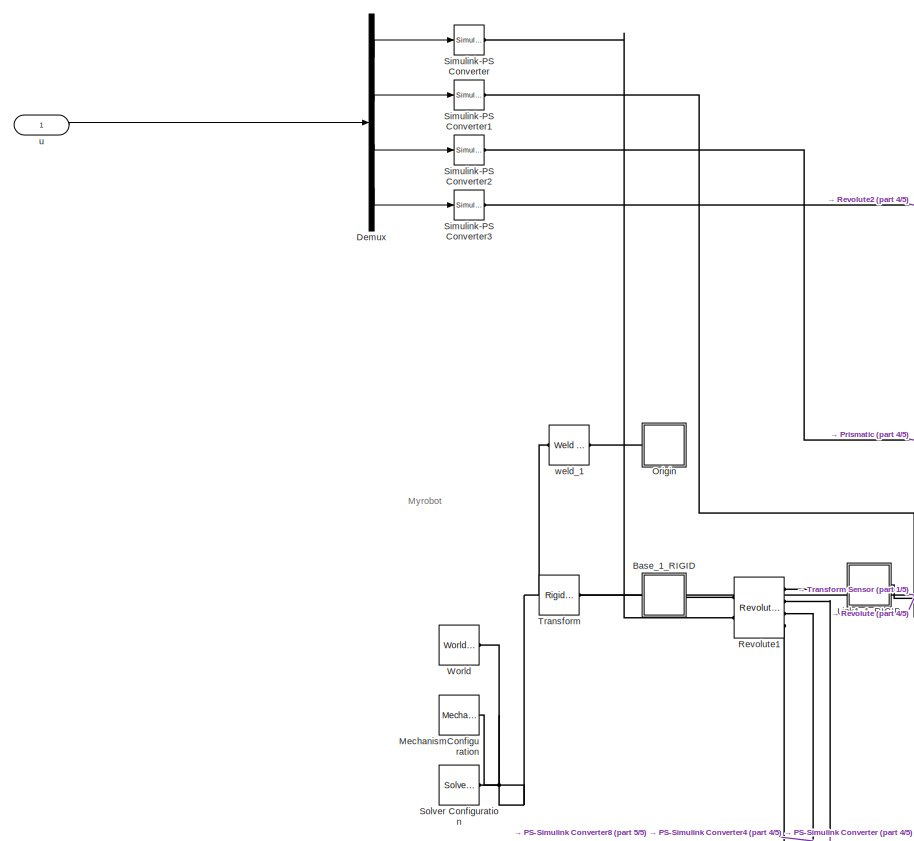
[diagram: SimscapeModelwithContactModel1/SimscapeModelwithContactModel - part 3/5, top left region]
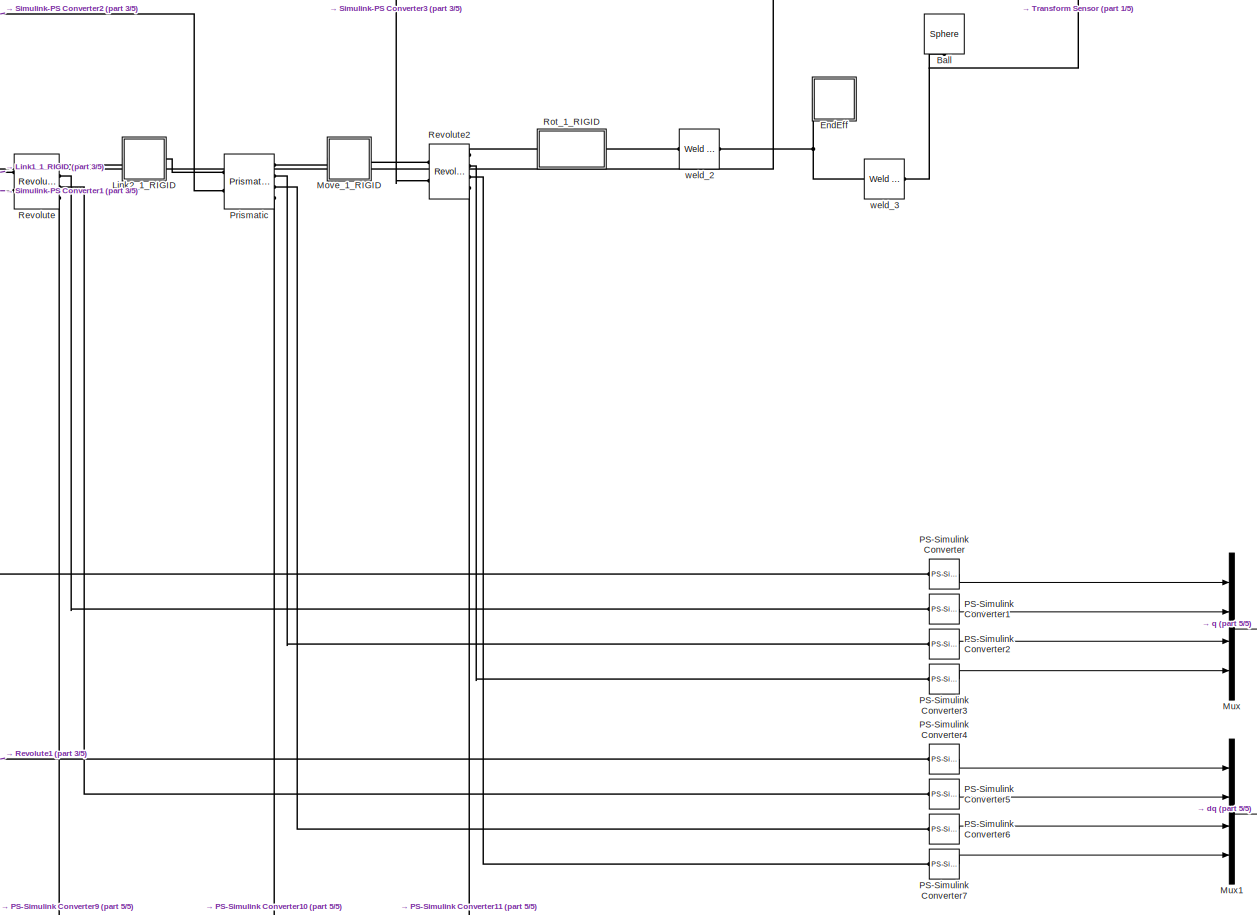
[diagram: SimscapeModelwithContactModel1/SimscapeModelwithContactModel - part 4/5, central region]
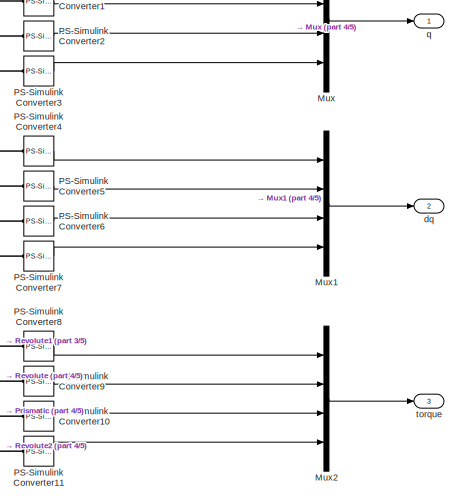
[diagram: SimscapeModelwithContactModel1/SimscapeModelwithContactModel - part 5/5, bottom center region]
BLOCK [SubSystem] SimscapeModelwithContactModel1/SimscapeModelwithContactModel
  Commented = on
  Ports = [1, 4]
  RequestExecContextInheritance = off
BLOCK [Reference] SimscapeModelwithContactModel1/SimscapeModelwithContactModel/Ball  REF=Parts_Lib/Sphere
  Ports = [0, 0, 0, 0, 0, 1]
  SourceBlock = Parts_Lib/Sphere
  SourceType = Sphere with Markings
  Tag = CustomStyle
BLOCK [SubSystem] SimscapeModelwithContactModel1/SimscapeModelwithContactModel/Base_1_RIGID
  Ports = [0, 0, 0, 0, 0, 1, 1]
  RequestExecContextInheritance = off
BLOCK [PMIOPort] SimscapeModelwithContactModel1/SimscapeModelwithContactModel/Base_1_RIGID/F
  Port = 2
  Side = Right
BLOCK [PMIOPort] SimscapeModelwithContactModel1/SimscapeModelwithContactModel/Base_1_RIGID/F1
  Side = Left
BLOCK [Reference] SimscapeModelwithContactModel1/SimscapeModelwithContactModel/Base_1_RIGID/ReferenceFrame  REF=sm_lib/Frames and
Transforms/Reference
Frame
  Ports = [0, 0, 0, 0, 0, 0, 1]
  SourceBlock = sm_lib/Frames and\nTransforms/Reference\nFrame
  SourceProductBaseCode = MS
  SourceProductName = Simscape Multibody
  SourceType = Reference\nFrame
BLOCK [Reference] SimscapeModelwithContactModel1/SimscapeModelwithContactModel/Base_1_RIGID/Solid  REF=sm_lib/Body Elements/Solid
  Ports = [0, 0, 0, 0, 0, 1]
  SourceBlock = sm_lib/Body Elements/Solid
  SourceProductBaseCode = MS
  SourceProductName = Simscape Multibody
  SourceType = Solid
BLOCK [Reference] SimscapeModelwithContactModel1/SimscapeModelwithContactModel/Base_1_RIGID/Transform  REF=sm_lib/Frames and
Transforms/Rigid
Transform
  Ports = [0, 0, 0, 0, 0, 1, 1]
  SourceBlock = sm_lib/Frames and\nTransforms/Rigid\nTransform
  SourceProductBaseCode = MS
  SourceProductName = Simscape Multibody
  SourceType = Rigid\nTransform
BLOCK [BusSelector] SimscapeModelwithContactModel1/SimscapeModelwithContactModel/Bus Selector
  Commented = on
  OutputAsBus = off
  OutputSignals = Normal Force
  Ports = [1, 1]
BLOCK [Constant] SimscapeModelwithContactModel1/SimscapeModelwithContactModel/Constant
  Commented = on
  Value = 0
BLOCK [Constant] SimscapeModelwithContactModel1/SimscapeModelwithContactModel/Constant1
  Commented = on
  Value = 0
BLOCK [Constant] SimscapeModelwithContactModel1/SimscapeModelwithContactModel/Constant2
  Commented = on
  Value = -0.2235
BLOCK [Constant] SimscapeModelwithContactModel1/SimscapeModelwithContactModel/Constant3
  Commented = on
  Value = 0
BLOCK [Constant] SimscapeModelwithContactModel1/SimscapeModelwithContactModel/Constant4
  Commented = on
  Value = 0
BLOCK [Constant] SimscapeModelwithContactModel1/SimscapeModelwithContactModel/Constant5
  Commented = on
  Value = 0
BLOCK [Constant] SimscapeModelwithContactModel1/SimscapeModelwithContactModel/Constant6
  Commented = on
  Value = 0
BLOCK [Constant] SimscapeModelwithContactModel1/SimscapeModelwithContactModel/Constant7
  Commented = on
  Value = 0
BLOCK [Constant] SimscapeModelwithContactModel1/SimscapeModelwithContactModel/Constant8
  Commented = on
  Value = 0
BLOCK [SubSystem] SimscapeModelwithContactModel1/SimscapeModelwithContactModel/Contact Force1
  Commented = on
  Ports = [0, 1, 0, 0, 0, 2]
  RequestExecContextInheritance = off
BLOCK [Outport] SimscapeModelwithContactModel1/SimscapeModelwithContactModel/Contact Force1/Force
  IconDisplay = Port number
BLOCK [SubSystem] SimscapeModelwithContactModel1/SimscapeModelwithContactModel/Contact Force1/Planar Object
  Ports = [0, 0, 0, 0, 0, 2]
  RequestExecContextInheritance = off
BLOCK [PMIOPort] SimscapeModelwithContactModel1/SimscapeModelwithContactModel/Contact Force1/Planar Object/F
  Side = Left
BLOCK [PMIOPort] SimscapeModelwithContactModel1/SimscapeModelwithContactModel/Contact Force1/Planar Object/F1
  Port = 2
  Side = Left
BLOCK [Reference] SimscapeModelwithContactModel1/SimscapeModelwithContactModel/Contact Force1/Planar Object/Inertia  REF=sm_lib/Body Elements/Solid
  Ports = [0, 0, 0, 0, 0, 0, 1]
  SourceBlock = sm_lib/Body Elements/Solid
  SourceProductBaseCode = MS
  SourceProductName = Simscape Multibody
  SourceType = Solid
BLOCK [Reference] SimscapeModelwithContactModel1/SimscapeModelwithContactModel/Contact Force1/Planar Object/InertiaOriginTransform  REF=sm_lib/Frames and
Transforms/Rigid
Transform
  Ports = [0, 0, 0, 0, 0, 1, 1]
  SourceBlock = sm_lib/Frames and\nTransforms/Rigid\nTransform
  SourceProductBaseCode = MS
  SourceProductName = Simscape Multibody
  SourceType = Rigid\nTransform
BLOCK [Reference] SimscapeModelwithContactModel1/SimscapeModelwithContactModel/Contact Force1/Planar Object/InertiaOriginTransform1  REF=sm_lib/Frames and
Transforms/Rigid
Transform
  Ports = [0, 0, 0, 0, 0, 1, 1]
  SourceBlock = sm_lib/Frames and\nTransforms/Rigid\nTransform
  SourceProductBaseCode = MS
  SourceProductName = Simscape Multibody
  SourceType = Rigid\nTransform
BLOCK [Reference] SimscapeModelwithContactModel1/SimscapeModelwithContactModel/Contact Force1/Planar Object/ReferenceFrame  REF=sm_lib/Frames and
Transforms/Reference
Frame
  Ports = [0, 0, 0, 0, 0, 0, 1]
  SourceBlock = sm_lib/Frames and\nTransforms/Reference\nFrame
  SourceProductBaseCode = MS
  SourceProductName = Simscape Multibody
  SourceType = Reference\nFrame
BLOCK [PMIOPort] SimscapeModelwithContactModel1/SimscapeModelwithContactModel/Contact Force1/SphFace
  Side = Left
BLOCK [Reference] SimscapeModelwithContactModel1/SimscapeModelwithContactModel/Contact Force1/Sphere to Plane Force  REF=Contact_Forces_Lib/3D/Sphere to Plane Force
  Ports = [0, 1, 0, 0, 0, 1, 1]
  SourceBlock = Contact_Forces_Lib/3D/Sphere to Plane Force
  SourceProductName = Simscape Multibody Contact Forces Library
  SourceType = Sphere to Plane Force
BLOCK [PMIOPort] SimscapeModelwithContactModel1/SimscapeModelwithContactModel/Contact Force1/plate
  Port = 2
  Side = Left
BLOCK [Reference] SimscapeModelwithContactModel1/SimscapeModelwithContactModel/Contact Force1/weld_3  REF=sm_lib/Joints/Weld Joint
  Ports = [0, 0, 0, 0, 0, 1, 1]
  SourceBlock = sm_lib/Joints/Weld Joint
  SourceProductBaseCode = MS
  SourceProductName = Simscape Multibody
  SourceType = Weld Joint
BLOCK [Demux] SimscapeModelwithContactModel1/SimscapeModelwithContactModel/Demux
  DisplayOption = bar
  Ports = [1, 4]
BLOCK [Display] SimscapeModelwithContactModel1/SimscapeModelwithContactModel/Display
  Commented = on
  Decimation = 1
  Format = long
  Ports = [1]
BLOCK [SubSystem] SimscapeModelwithContactModel1/SimscapeModelwithContactModel/EndEff
  Ports = [0, 0, 0, 0, 0, 1]
  RequestExecContextInheritance = off
BLOCK [PMIOPort] SimscapeModelwithContactModel1/SimscapeModelwithContactModel/EndEff/F
  Side = Left
BLOCK [Reference] SimscapeModelwithContactModel1/SimscapeModelwithContactModel/EndEff/ReferenceFrame  REF=sm_lib/Frames and
Transforms/Reference
Frame
  Ports = [0, 0, 0, 0, 0, 0, 1]
  SourceBlock = sm_lib/Frames and\nTransforms/Reference\nFrame
  SourceProductBaseCode = MS
  SourceProductName = Simscape Multibody
  SourceType = Reference\nFrame
BLOCK [Outport] SimscapeModelwithContactModel1/SimscapeModelwithContactModel/Fe1
  IconDisplay = Port number
  Port = 4
BLOCK [Reference] SimscapeModelwithContactModel1/SimscapeModelwithContactModel/Get Transform  REF=robotmaniplib/Get Transform
  Commented = on
  Ports = [1, 1]
  SourceBlock = robotmaniplib/Get Transform
  SourceProductBaseCode = RO
  SourceProductName = Robotics System Toolbox
  SourceType = Get Transform
BLOCK [SubSystem] SimscapeModelwithContactModel1/SimscapeModelwithContactModel/Link1_1_RIGID
  Ports = [0, 0, 0, 0, 0, 1, 1]
  RequestExecContextInheritance = off
BLOCK [PMIOPort] SimscapeModelwithContactModel1/SimscapeModelwithContactModel/Link1_1_RIGID/F
  Port = 2
  Side = Right
BLOCK [PMIOPort] SimscapeModelwithContactModel1/SimscapeModelwithContactModel/Link1_1_RIGID/F1
  Side = Left
BLOCK [Reference] SimscapeModelwithContactModel1/SimscapeModelwithContactModel/Link1_1_RIGID/ReferenceFrame  REF=sm_lib/Frames and
Transforms/Reference
Frame
  Ports = [0, 0, 0, 0, 0, 0, 1]
  SourceBlock = sm_lib/Frames and\nTransforms/Reference\nFrame
  SourceProductBaseCode = MS
  SourceProductName = Simscape Multibody
  SourceType = Reference\nFrame
BLOCK [Reference] SimscapeModelwithContactModel1/SimscapeModelwithContactModel/Link1_1_RIGID/Solid  REF=sm_lib/Body Elements/Solid
  Ports = [0, 0, 0, 0, 0, 0, 1]
  SourceBlock = sm_lib/Body Elements/Solid
  SourceProductBaseCode = MS
  SourceProductName = Simscape Multibody
  SourceType = Solid
BLOCK [Reference] SimscapeModelwithContactModel1/SimscapeModelwithContactModel/Link1_1_RIGID/Transform  REF=sm_lib/Frames and
Transforms/Rigid
Transform
  Ports = [0, 0, 0, 0, 0, 1, 1]
  SourceBlock = sm_lib/Frames and\nTransforms/Rigid\nTransform
  SourceProductBaseCode = MS
  SourceProductName = Simscape Multibody
  SourceType = Rigid\nTransform
BLOCK [Reference] SimscapeModelwithContactModel1/SimscapeModelwithContactModel/Link1_1_RIGID/Transform1  REF=sm_lib/Frames and
Transforms/Rigid
Transform
  Ports = [0, 0, 0, 0, 0, 1, 1]
  SourceBlock = sm_lib/Frames and\nTransforms/Rigid\nTransform
  SourceProductBaseCode = MS
  SourceProductName = Simscape Multibody
  SourceType = Rigid\nTransform
BLOCK [SubSystem] SimscapeModelwithContactModel1/SimscapeModelwithContactModel/Link2_1_RIGID
  Ports = [0, 0, 0, 0, 0, 1, 1]
  RequestExecContextInheritance = off
BLOCK [PMIOPort] SimscapeModelwithContactModel1/SimscapeModelwithContactModel/Link2_1_RIGID/F
  Side = Left
BLOCK [PMIOPort] SimscapeModelwithContactModel1/SimscapeModelwithContactModel/Link2_1_RIGID/F1
  Port = 2
  Side = Right
BLOCK [Reference] SimscapeModelwithContactModel1/SimscapeModelwithContactModel/Link2_1_RIGID/ReferenceFrame  REF=sm_lib/Frames and
Transforms/Reference
Frame
  Ports = [0, 0, 0, 0, 0, 0, 1]
  SourceBlock = sm_lib/Frames and\nTransforms/Reference\nFrame
  SourceProductBaseCode = MS
  SourceProductName = Simscape Multibody
  SourceType = Reference\nFrame
BLOCK [Reference] SimscapeModelwithContactModel1/SimscapeModelwithContactModel/Link2_1_RIGID/Solid  REF=sm_lib/Body Elements/Solid
  Ports = [0, 0, 0, 0, 0, 0, 1]
  SourceBlock = sm_lib/Body Elements/Solid
  SourceProductBaseCode = MS
  SourceProductName = Simscape Multibody
  SourceType = Solid
BLOCK [Reference] SimscapeModelwithContactModel1/SimscapeModelwithContactModel/Link2_1_RIGID/Transform  REF=sm_lib/Frames and
Transforms/Rigid
Transform
  Ports = [0, 0, 0, 0, 0, 1, 1]
  SourceBlock = sm_lib/Frames and\nTransforms/Rigid\nTransform
  SourceProductBaseCode = MS
  SourceProductName = Simscape Multibody
  SourceType = Rigid\nTransform
BLOCK [Reference] SimscapeModelwithContactModel1/SimscapeModelwithContactModel/Link2_1_RIGID/Transform1  REF=sm_lib/Frames and
Transforms/Rigid
Transform
  Ports = [0, 0, 0, 0, 0, 1, 1]
  SourceBlock = sm_lib/Frames and\nTransforms/Rigid\nTransform
  SourceProductBaseCode = MS
  SourceProductName = Simscape Multibody
  SourceType = Rigid\nTransform
BLOCK [Reference] SimscapeModelwithContactModel1/SimscapeModelwithContactModel/MechanismConfiguration  REF=sm_lib/Utilities/Mechanism
Configuration
  Ports = [0, 0, 0, 0, 0, 0, 1]
  SourceBlock = sm_lib/Utilities/Mechanism\nConfiguration
  SourceProductBaseCode = MS
  SourceProductName = Simscape Multibody
  SourceType = Mechanism\nConfiguration
BLOCK [SubSystem] SimscapeModelwithContactModel1/SimscapeModelwithContactModel/Move_1_RIGID
  Ports = [0, 0, 0, 0, 0, 1, 1]
  RequestExecContextInheritance = off
BLOCK [PMIOPort] SimscapeModelwithContactModel1/SimscapeModelwithContactModel/Move_1_RIGID/F
  Side = Left
BLOCK [PMIOPort] SimscapeModelwithContactModel1/SimscapeModelwithContactModel/Move_1_RIGID/F1
  Port = 2
  Side = Right
BLOCK [Reference] SimscapeModelwithContactModel1/SimscapeModelwithContactModel/Move_1_RIGID/ReferenceFrame  REF=sm_lib/Frames and
Transforms/Reference
Frame
  Ports = [0, 0, 0, 0, 0, 0, 1]
  SourceBlock = sm_lib/Frames and\nTransforms/Reference\nFrame
  SourceProductBaseCode = MS
  SourceProductName = Simscape Multibody
  SourceType = Reference\nFrame
BLOCK [Reference] SimscapeModelwithContactModel1/SimscapeModelwithContactModel/Move_1_RIGID/Solid  REF=sm_lib/Body Elements/Solid
  Ports = [0, 0, 0, 0, 0, 0, 1]
  SourceBlock = sm_lib/Body Elements/Solid
  SourceProductBaseCode = MS
  SourceProductName = Simscape Multibody
  SourceType = Solid
BLOCK [Reference] SimscapeModelwithContactModel1/SimscapeModelwithContactModel/Move_1_RIGID/Transform  REF=sm_lib/Frames and
Transforms/Rigid
Transform
  Ports = [0, 0, 0, 0, 0, 1, 1]
  SourceBlock = sm_lib/Frames and\nTransforms/Rigid\nTransform
  SourceProductBaseCode = MS
  SourceProductName = Simscape Multibody
  SourceType = Rigid\nTransform
BLOCK [Reference] SimscapeModelwithContactModel1/SimscapeModelwithContactModel/Move_1_RIGID/Transform1  REF=sm_lib/Frames and
Transforms/Rigid
Transform
  Ports = [0, 0, 0, 0, 0, 1, 1]
  SourceBlock = sm_lib/Frames and\nTransforms/Rigid\nTransform
  SourceProductBaseCode = MS
  SourceProductName = Simscape Multibody
  SourceType = Rigid\nTransform
BLOCK [Mux] SimscapeModelwithContactModel1/SimscapeModelwithContactModel/Mux
  DisplayOption = bar
  Ports = [4, 1]
BLOCK [Mux] SimscapeModelwithContactModel1/SimscapeModelwithContactModel/Mux1
  DisplayOption = bar
  Ports = [4, 1]
BLOCK [Mux] SimscapeModelwithContactModel1/SimscapeModelwithContactModel/Mux2
  DisplayOption = bar
  Ports = [4, 1]
BLOCK [Mux] SimscapeModelwithContactModel1/SimscapeModelwithContactModel/Mux3
  Commented = on
  DisplayOption = bar
  Ports = [4, 1]
BLOCK [Mux] SimscapeModelwithContactModel1/SimscapeModelwithContactModel/Mux4
  Commented = on
  DisplayOption = bar
  Inputs = 6
  Ports = [6, 1]
BLOCK [SubSystem] SimscapeModelwithContactModel1/SimscapeModelwithContactModel/Origin
  Ports = [0, 0, 0, 0, 0, 1]
  RequestExecContextInheritance = off
BLOCK [PMIOPort] SimscapeModelwithContactModel1/SimscapeModelwithContactModel/Origin/F
  Side = Left
BLOCK [Reference] SimscapeModelwithContactModel1/SimscapeModelwithContactModel/Origin/ReferenceFrame  REF=sm_lib/Frames and
Transforms/Reference
Frame
  Ports = [0, 0, 0, 0, 0, 0, 1]
  SourceBlock = sm_lib/Frames and\nTransforms/Reference\nFrame
  SourceProductBaseCode = MS
  SourceProductName = Simscape Multibody
  SourceType = Reference\nFrame
BLOCK [Reference] SimscapeModelwithContactModel1/SimscapeModelwithContactModel/PS-Simulink Converter  REF=nesl_utility/PS-Simulink
Converter
  Ports = [0, 1, 0, 0, 0, 1]
  SourceBlock = nesl_utility/PS-Simulink\nConverter
  SourceProductBaseCode = SS
  SourceProductName = Simscape
  SourceType = PS-Simulink\nConverter
BLOCK [Reference] SimscapeModelwithContactModel1/SimscapeModelwithContactModel/PS-Simulink Converter1  REF=nesl_utility/PS-Simulink
Converter
  Ports = [0, 1, 0, 0, 0, 1]
  SourceBlock = nesl_utility/PS-Simulink\nConverter
  SourceProductBaseCode = SS
  SourceProductName = Simscape
  SourceType = PS-Simulink\nConverter
BLOCK [Reference] SimscapeModelwithContactModel1/SimscapeModelwithContactModel/PS-Simulink Converter10  REF=nesl_utility/PS-Simulink
Converter
  Ports = [0, 1, 0, 0, 0, 1]
  SourceBlock = nesl_utility/PS-Simulink\nConverter
  SourceProductBaseCode = SS
  SourceProductName = Simscape
  SourceType = PS-Simulink\nConverter
BLOCK [Reference] SimscapeModelwithContactModel1/SimscapeModelwithContactModel/PS-Simulink Converter11  REF=nesl_utility/PS-Simulink
Converter
  Ports = [0, 1, 0, 0, 0, 1]
  SourceBlock = nesl_utility/PS-Simulink\nConverter
  SourceProductBaseCode = SS
  SourceProductName = Simscape
  SourceType = PS-Simulink\nConverter
BLOCK [Reference] SimscapeModelwithContactModel1/SimscapeModelwithContactModel/PS-Simulink Converter12  REF=nesl_utility/PS-Simulink
Converter
  Ports = [0, 1, 0, 0, 0, 1]
  SourceBlock = nesl_utility/PS-Simulink\nConverter
  SourceProductBaseCode = SS
  SourceProductName = Simscape
  SourceType = PS-Simulink\nConverter
BLOCK [Reference] SimscapeModelwithContactModel1/SimscapeModelwithContactModel/PS-Simulink Converter2  REF=nesl_utility/PS-Simulink
Converter
  Ports = [0, 1, 0, 0, 0, 1]
  SourceBlock = nesl_utility/PS-Simulink\nConverter
  SourceProductBaseCode = SS
  SourceProductName = Simscape
  SourceType = PS-Simulink\nConverter
BLOCK [Reference] SimscapeModelwithContactModel1/SimscapeModelwithContactModel/PS-Simulink Converter29  REF=nesl_utility/PS-Simulink
Converter
  Ports = [0, 1, 0, 0, 0, 1]
  SourceBlock = nesl_utility/PS-Simulink\nConverter
  SourceProductBaseCode = SS
  SourceProductName = Simscape
  SourceType = PS-Simulink\nConverter
BLOCK [Reference] SimscapeModelwithContactModel1/SimscapeModelwithContactModel/PS-Simulink Converter3  REF=nesl_utility/PS-Simulink
Converter
  Ports = [0, 1, 0, 0, 0, 1]
  SourceBlock = nesl_utility/PS-Simulink\nConverter
  SourceProductBaseCode = SS
  SourceProductName = Simscape
  SourceType = PS-Simulink\nConverter
BLOCK [Reference] SimscapeModelwithContactModel1/SimscapeModelwithContactModel/PS-Simulink Converter4  REF=nesl_utility/PS-Simulink
Converter
  Ports = [0, 1, 0, 0, 0, 1]
  SourceBlock = nesl_utility/PS-Simulink\nConverter
  SourceProductBaseCode = SS
  SourceProductName = Simscape
  SourceType = PS-Simulink\nConverter
BLOCK [Reference] SimscapeModelwithContactModel1/SimscapeModelwithContactModel/PS-Simulink Converter5  REF=nesl_utility/PS-Simulink
Converter
  Ports = [0, 1, 0, 0, 0, 1]
  SourceBlock = nesl_utility/PS-Simulink\nConverter
  SourceProductBaseCode = SS
  SourceProductName = Simscape
  SourceType = PS-Simulink\nConverter
BLOCK [Reference] SimscapeModelwithContactModel1/SimscapeModelwithContactModel/PS-Simulink Converter6  REF=nesl_utility/PS-Simulink
Converter
  Ports = [0, 1, 0, 0, 0, 1]
  SourceBlock = nesl_utility/PS-Simulink\nConverter
  SourceProductBaseCode = SS
  SourceProductName = Simscape
  SourceType = PS-Simulink\nConverter
BLOCK [Reference] SimscapeModelwithContactModel1/SimscapeModelwithContactModel/PS-Simulink Converter7  REF=nesl_utility/PS-Simulink
Converter
  Ports = [0, 1, 0, 0, 0, 1]
  SourceBlock = nesl_utility/PS-Simulink\nConverter
  SourceProductBaseCode = SS
  SourceProductName = Simscape
  SourceType = PS-Simulink\nConverter
BLOCK [Reference] SimscapeModelwithContactModel1/SimscapeModelwithContactModel/PS-Simulink Converter8  REF=nesl_utility/PS-Simulink
Converter
  Ports = [0, 1, 0, 0, 0, 1]
  SourceBlock = nesl_utility/PS-Simulink\nConverter
  SourceProductBaseCode = SS
  SourceProductName = Simscape
  SourceType = PS-Simulink\nConverter
BLOCK [Reference] SimscapeModelwithContactModel1/SimscapeModelwithContactModel/PS-Simulink Converter9  REF=nesl_utility/PS-Simulink
Converter
  Ports = [0, 1, 0, 0, 0, 1]
  SourceBlock = nesl_utility/PS-Simulink\nConverter
  SourceProductBaseCode = SS
  SourceProductName = Simscape
  SourceType = PS-Simulink\nConverter
BLOCK [Reference] SimscapeModelwithContactModel1/SimscapeModelwithContactModel/Prismatic  REF=sm_lib/Joints/Prismatic
Joint
  Ports = [0, 0, 0, 0, 0, 2, 4]
  SourceBlock = sm_lib/Joints/Prismatic\nJoint
  SourceProductBaseCode = MS
  SourceProductName = Simscape Multibody
  SourceType = Prismatic\nJoint
BLOCK [Reference] SimscapeModelwithContactModel1/SimscapeModelwithContactModel/Revolute  REF=sm_lib/Joints/Revolute Joint
  Ports = [0, 0, 0, 0, 0, 2, 4]
  SourceBlock = sm_lib/Joints/Revolute Joint
  SourceProductBaseCode = MS
  SourceProductName = Simscape Multibody
  SourceType = Revolute Joint
BLOCK [Reference] SimscapeModelwithContactModel1/SimscapeModelwithContactModel/Revolute1  REF=sm_lib/Joints/Revolute Joint
  Ports = [0, 0, 0, 0, 0, 2, 4]
  SourceBlock = sm_lib/Joints/Revolute Joint
  SourceProductBaseCode = MS
  SourceProductName = Simscape Multibody
  SourceType = Revolute Joint
BLOCK [Reference] SimscapeModelwithContactModel1/SimscapeModelwithContactModel/Revolute2  REF=sm_lib/Joints/Revolute Joint
  Ports = [0, 0, 0, 0, 0, 2, 4]
  SourceBlock = sm_lib/Joints/Revolute Joint
  SourceProductBaseCode = MS
  SourceProductName = Simscape Multibody
  SourceType = Revolute Joint
BLOCK [SubSystem] SimscapeModelwithContactModel1/SimscapeModelwithContactModel/Rot_1_RIGID
  Ports = [0, 0, 0, 0, 0, 1, 1]
  RequestExecContextInheritance = off
BLOCK [PMIOPort] SimscapeModelwithContactModel1/SimscapeModelwithContactModel/Rot_1_RIGID/F
  Side = Left
BLOCK [Reference] SimscapeModelwithContactModel1/SimscapeModelwithContactModel/Rot_1_RIGID/ReferenceFrame  REF=sm_lib/Frames and
Transforms/Reference
Frame
  Ports = [0, 0, 0, 0, 0, 0, 1]
  SourceBlock = sm_lib/Frames and\nTransforms/Reference\nFrame
  SourceProductBaseCode = MS
  SourceProductName = Simscape Multibody
  SourceType = Reference\nFrame
BLOCK [Reference] SimscapeModelwithContactModel1/SimscapeModelwithContactModel/Rot_1_RIGID/Solid  REF=sm_lib/Body Elements/Solid
  Ports = [0, 0, 0, 0, 0, 0, 1]
  SourceBlock = sm_lib/Body Elements/Solid
  SourceProductBaseCode = MS
  SourceProductName = Simscape Multibody
  SourceType = Solid
BLOCK [Reference] SimscapeModelwithContactModel1/SimscapeModelwithContactModel/Rot_1_RIGID/Transform1  REF=sm_lib/Frames and
Transforms/Rigid
Transform
  Ports = [0, 0, 0, 0, 0, 1, 1]
  SourceBlock = sm_lib/Frames and\nTransforms/Rigid\nTransform
  SourceProductBaseCode = MS
  SourceProductName = Simscape Multibody
  SourceType = Rigid\nTransform
BLOCK [Reference] SimscapeModelwithContactModel1/SimscapeModelwithContactModel/Rot_1_RIGID/Transform8  REF=sm_lib/Frames and
Transforms/Rigid
Transform
  Ports = [0, 0, 0, 0, 0, 1, 1]
  SourceBlock = sm_lib/Frames and\nTransforms/Rigid\nTransform
  SourceProductBaseCode = MS
  SourceProductName = Simscape Multibody
  SourceType = Rigid\nTransform
BLOCK [PMIOPort] SimscapeModelwithContactModel1/SimscapeModelwithContactModel/Rot_1_RIGID/endEff
  Port = 2
  Side = Right
BLOCK [SubSystem] SimscapeModelwithContactModel1/SimscapeModelwithContactModel/Signal Builder
  ClipboardFcn = sigbuilder_block('clipboard');
  CloseFcn = sigbuilder_block('close');
  Commented = on
  ContinueFcn = sigbuilder_block('continue');
  CopyFcn = sigbuilder_block('copy');
  DeleteFcn = sigbuilder_block('delete');
  LoadFcn = sigbuilder_block('load');
  MaskHideContents = on
  ModelCloseFcn = sigbuilder_block('modelClose');
  NameChangeFcn = sigbuilder_block('namechange');
  OpenFcn = sigbuilder_block('open',[437.6 199.2 550.4 400 ]);
  PauseFcn = sigbuilder_block('pause');
  Ports = [0, 1]
  PreSaveFcn = sigbuilder_block('preSave');
  RequestExecContextInheritance = off
  StartFcn = sigbuilder_block('start');
  StopFcn = sigbuilder_block('stop');
  Tag = STV Subsys
BLOCK [Demux] SimscapeModelwithContactModel1/SimscapeModelwithContactModel/Signal Builder/Demux
  Outputs = 1
  Ports = [1, 1]
  Tag = STV Demux
BLOCK [FromWorkspace] SimscapeModelwithContactModel1/SimscapeModelwithContactModel/Signal Builder/FromWs
  SampleTime = 0
  Tag = STV FromWs
  VariableName = tuvar
  ZeroCross = on
BLOCK [Outport] SimscapeModelwithContactModel1/SimscapeModelwithContactModel/Signal Builder/Signal 1
  IconDisplay = Port number
  Tag = STV Outport
BLOCK [Reference] SimscapeModelwithContactModel1/SimscapeModelwithContactModel/Simulink-PS Converter  REF=nesl_utility/Simulink-PS
Converter
  Ports = [1, 0, 0, 0, 0, 0, 1]
  SourceBlock = nesl_utility/Simulink-PS\nConverter
  SourceProductBaseCode = SS
  SourceProductName = Simscape
  SourceType = Simulink-PS\nConverter
BLOCK [Reference] SimscapeModelwithContactModel1/SimscapeModelwithContactModel/Simulink-PS Converter1  REF=nesl_utility/Simulink-PS
Converter
  Ports = [1, 0, 0, 0, 0, 0, 1]
  SourceBlock = nesl_utility/Simulink-PS\nConverter
  SourceProductBaseCode = SS
  SourceProductName = Simscape
  SourceType = Simulink-PS\nConverter
BLOCK [Reference] SimscapeModelwithContactModel1/SimscapeModelwithContactModel/Simulink-PS Converter2  REF=nesl_utility/Simulink-PS
Converter
  Ports = [1, 0, 0, 0, 0, 0, 1]
  SourceBlock = nesl_utility/Simulink-PS\nConverter
  SourceProductBaseCode = SS
  SourceProductName = Simscape
  SourceType = Simulink-PS\nConverter
BLOCK [Reference] SimscapeModelwithContactModel1/SimscapeModelwithContactModel/Simulink-PS Converter3  REF=nesl_utility/Simulink-PS
Converter
  Ports = [1, 0, 0, 0, 0, 0, 1]
  SourceBlock = nesl_utility/Simulink-PS\nConverter
  SourceProductBaseCode = SS
  SourceProductName = Simscape
  SourceType = Simulink-PS\nConverter
BLOCK [Reference] SimscapeModelwithContactModel1/SimscapeModelwithContactModel/Solver Configuration  REF=nesl_utility/Solver
Configuration
  Ports = [0, 0, 0, 0, 0, 0, 1]
  SourceBlock = nesl_utility/Solver\nConfiguration
  SourceProductBaseCode = SS
  SourceProductName = Simscape
  SourceType = Solver\nConfiguration
BLOCK [SubSystem] SimscapeModelwithContactModel1/SimscapeModelwithContactModel/Subsystem
  Ports = [2, 1]
  RequestExecContextInheritance = off
BLOCK [SubSystem] SimscapeModelwithContactModel1/SimscapeModelwithContactModel/Subsystem/Contact Model
  ErrorFcn = Stateflow.Translate.translate
  PermitHierarchicalResolution = ExplicitOnly
  Ports = [4, 1]
  RequestExecContextInheritance = off
  SFBlockType = MATLAB Function
  TreatAsAtomicUnit = on
BLOCK [Demux] SimscapeModelwithContactModel1/SimscapeModelwithContactModel/Subsystem/Contact Model/ Demux 
  Outputs = 1
  Ports = [1, 1]
BLOCK [S-Function] SimscapeModelwithContactModel1/SimscapeModelwithContactModel/Subsystem/Contact Model/ SFunction 
  EnableBusSupport = on
  FunctionName = sf_sfun
  PortCounts = [4 2]
  Ports = [4, 2]
  SFcnIsStateOwnerBlock = off
  SFunctionDeploymentMode = off
  Tag = Stateflow S-Function Computed_Torque_Control 6
BLOCK [Terminator] SimscapeModelwithContactModel1/SimscapeModelwithContactModel/Subsystem/Contact Model/ Terminator 
BLOCK [Outport] SimscapeModelwithContactModel1/SimscapeModelwithContactModel/Subsystem/Contact Model/Force
  IconDisplay = Port number
BLOCK [Inport] SimscapeModelwithContactModel1/SimscapeModelwithContactModel/Subsystem/Contact Model/b
  IconDisplay = Port number
  Port = 4
BLOCK [Inport] SimscapeModelwithContactModel1/SimscapeModelwithContactModel/Subsystem/Contact Model/k
  IconDisplay = Port number
  Port = 3
BLOCK [Inport] SimscapeModelwithContactModel1/SimscapeModelwithContactModel/Subsystem/Contact Model/pZ
  IconDisplay = Port number
BLOCK [Inport] SimscapeModelwithContactModel1/SimscapeModelwithContactModel/Subsystem/Contact Model/vZ
  IconDisplay = Port number
  Port = 2
BLOCK [Constant] SimscapeModelwithContactModel1/SimscapeModelwithContactModel/Subsystem/Damping
  Value = 100
BLOCK [Outport] SimscapeModelwithContactModel1/SimscapeModelwithContactModel/Subsystem/Force
  IconDisplay = Port number
BLOCK [Constant] SimscapeModelwithContactModel1/SimscapeModelwithContactModel/Subsystem/Stiffness
  Value = 1e5
BLOCK [Inport] SimscapeModelwithContactModel1/SimscapeModelwithContactModel/Subsystem/pZ
  IconDisplay = Port number
BLOCK [Inport] SimscapeModelwithContactModel1/SimscapeModelwithContactModel/Subsystem/vZ
  IconDisplay = Port number
  Port = 2
BLOCK [Reference] SimscapeModelwithContactModel1/SimscapeModelwithContactModel/Transform  REF=sm_lib/Frames and
Transforms/Rigid
Transform
  Ports = [0, 0, 0, 0, 0, 1, 1]
  SourceBlock = sm_lib/Frames and\nTransforms/Rigid\nTransform
  SourceProductBaseCode = MS
  SourceProductName = Simscape Multibody
  SourceType = Rigid\nTransform
BLOCK [Reference] SimscapeModelwithContactModel1/SimscapeModelwithContactModel/Transform Sensor  REF=sm_lib/Frames and
Transforms/Transform
Sensor
  Ports = [0, 0, 0, 0, 0, 1, 3]
  SourceBlock = sm_lib/Frames and\nTransforms/Transform\nSensor
  SourceProductBaseCode = MS
  SourceProductName = Simscape Multibody
  SourceType = Transform\nSensor
BLOCK [Reference] SimscapeModelwithContactModel1/SimscapeModelwithContactModel/World  REF=sm_lib/Frames and
Transforms/World Frame
  Ports = [0, 0, 0, 0, 0, 0, 1]
  SourceBlock = sm_lib/Frames and\nTransforms/World Frame
  SourceProductBaseCode = MS
  SourceProductName = Simscape Multibody
  SourceType = World Frame
BLOCK [Outport] SimscapeModelwithContactModel1/SimscapeModelwithContactModel/dq
  IconDisplay = Port number
  Port = 2
BLOCK [Outport] SimscapeModelwithContactModel1/SimscapeModelwithContactModel/q
  IconDisplay = Port number
BLOCK [Outport] SimscapeModelwithContactModel1/SimscapeModelwithContactModel/torque
  IconDisplay = Port number
  Port = 3
BLOCK [Inport] SimscapeModelwithContactModel1/SimscapeModelwithContactModel/u
  IconDisplay = Port number
BLOCK [Reference] SimscapeModelwithContactModel1/SimscapeModelwithContactModel/weld_1  REF=sm_lib/Joints/Weld Joint
  Ports = [0, 0, 0, 0, 0, 1, 1]
  SourceBlock = sm_lib/Joints/Weld Joint
  SourceProductBaseCode = MS
  SourceProductName = Simscape Multibody
  SourceType = Weld Joint
BLOCK [Reference] SimscapeModelwithContactModel1/SimscapeModelwithContactModel/weld_2  REF=sm_lib/Joints/Weld Joint
  Ports = [0, 0, 0, 0, 0, 1, 1]
  SourceBlock = sm_lib/Joints/Weld Joint
  SourceProductBaseCode = MS
  SourceProductName = Simscape Multibody
  SourceType = Weld Joint
BLOCK [Reference] SimscapeModelwithContactModel1/SimscapeModelwithContactModel/weld_3  REF=sm_lib/Joints/Weld Joint
  Ports = [0, 0, 0, 0, 0, 1, 1]
  SourceBlock = sm_lib/Joints/Weld Joint
  SourceProductBaseCode = MS
  SourceProductName = Simscape Multibody
  SourceType = Weld Joint
BLOCK [Reference] SimscapeModelwithContactModel1/Simulink-PS Converter  REF=nesl_utility/Simulink-PS
Converter
  Ports = [1, 0, 0, 0, 0, 0, 1]
  SourceBlock = nesl_utility/Simulink-PS\nConverter
  SourceProductBaseCode = SS
  SourceProductName = Simscape
  SourceType = Simulink-PS\nConverter
BLOCK [Reference] SimscapeModelwithContactModel1/Simulink-PS Converter1  REF=nesl_utility/Simulink-PS
Converter
  Ports = [1, 0, 0, 0, 0, 0, 1]
  SourceBlock = nesl_utility/Simulink-PS\nConverter
  SourceProductBaseCode = SS
  SourceProductName = Simscape
  SourceType = Simulink-PS\nConverter
BLOCK [Reference] SimscapeModelwithContactModel1/Simulink-PS Converter2  REF=nesl_utility/Simulink-PS
Converter
  Ports = [1, 0, 0, 0, 0, 0, 1]
  SourceBlock = nesl_utility/Simulink-PS\nConverter
  SourceProductBaseCode = SS
  SourceProductName = Simscape
  SourceType = Simulink-PS\nConverter
BLOCK [Reference] SimscapeModelwithContactModel1/Simulink-PS Converter3  REF=nesl_utility/Simulink-PS
Converter
  Ports = [1, 0, 0, 0, 0, 0, 1]
  SourceBlock = nesl_utility/Simulink-PS\nConverter
  SourceProductBaseCode = SS
  SourceProductName = Simscape
  SourceType = Simulink-PS\nConverter
BLOCK [Reference] SimscapeModelwithContactModel1/Simulink-PS Converter4  REF=nesl_utility/Simulink-PS
Converter
  Ports = [1, 0, 0, 0, 0, 0, 1]
  SourceBlock = nesl_utility/Simulink-PS\nConverter
  SourceProductBaseCode = SS
  SourceProductName = Simscape
  SourceType = Simulink-PS\nConverter
BLOCK [Reference] SimscapeModelwithContactModel1/Simulink-PS Converter5  REF=nesl_utility/Simulink-PS
Converter
  Ports = [1, 0, 0, 0, 0, 0, 1]
  SourceBlock = nesl_utility/Simulink-PS\nConverter
  SourceProductBaseCode = SS
  SourceProductName = Simscape
  SourceType = Simulink-PS\nConverter
BLOCK [Reference] SimscapeModelwithContactModel1/Simulink-PS Converter6  REF=nesl_utility/Simulink-PS
Converter
  Ports = [1, 0, 0, 0, 0, 0, 1]
  SourceBlock = nesl_utility/Simulink-PS\nConverter
  SourceProductBaseCode = SS
  SourceProductName = Simscape
  SourceType = Simulink-PS\nConverter
BLOCK [Reference] SimscapeModelwithContactModel1/Simulink-PS Converter7  REF=nesl_utility/Simulink-PS
Converter
  Commented = on
  Ports = [1, 0, 0, 0, 0, 0, 1]
  SourceBlock = nesl_utility/Simulink-PS\nConverter
  SourceProductBaseCode = SS
  SourceProductName = Simscape
  SourceType = Simulink-PS\nConverter
BLOCK [Sin] SimscapeModelwithContactModel1/Sine Wave
  Amplitude = 20
  Commented = on
  Ports = [0, 1]
  SampleTime = 0
BLOCK [Reference] SimscapeModelwithContactModel1/Solver Configuration  REF=nesl_utility/Solver
Configuration
  Ports = [0, 0, 0, 0, 0, 0, 1]
  SourceBlock = nesl_utility/Solver\nConfiguration
  SourceProductBaseCode = SS
  SourceProductName = Simscape
  SourceType = Solver\nConfiguration
BLOCK [Reference] SimscapeModelwithContactModel1/Sphere to Plane Force  REF=Contact_Forces_Lib/3D/Sphere to Plane Force
  Commented = on
  Ports = [0, 1, 0, 0, 0, 1, 1]
  SourceBlock = Contact_Forces_Lib/3D/Sphere to Plane Force
  SourceProductName = Simscape Multibody Contact Forces Library
  SourceType = Sphere to Plane Force
BLOCK [ToFile] SimscapeModelwithContactModel1/To File
  Filename = compare_force_contact_Fe.mat
  MatrixName = Fe
  Ports = [1]
  SaveFormat = Timeseries
BLOCK [Reference] SimscapeModelwithContactModel1/Transform  REF=sm_lib/Frames and
Transforms/Rigid
Transform
  Ports = [0, 0, 0, 0, 0, 1, 1]
  SourceBlock = sm_lib/Frames and\nTransforms/Rigid\nTransform
  SourceProductBaseCode = MS
  SourceProductName = Simscape Multibody
  SourceType = Rigid\nTransform
BLOCK [Reference] SimscapeModelwithContactModel1/Transform Sensor  REF=sm_lib/Frames and
Transforms/Transform
Sensor
  Ports = [0, 0, 0, 0, 0, 1, 5]
  SourceBlock = sm_lib/Frames and\nTransforms/Transform\nSensor
  SourceProductBaseCode = MS
  SourceProductName = Simscape Multibody
  SourceType = Transform\nSensor
BLOCK [Reference] SimscapeModelwithContactModel1/World  REF=sm_lib/Frames and
Transforms/World Frame
  Ports = [0, 0, 0, 0, 0, 0, 1]
  SourceBlock = sm_lib/Frames and\nTransforms/World Frame
  SourceProductBaseCode = MS
  SourceProductName = Simscape Multibody
  SourceType = World Frame
BLOCK [Outport] SimscapeModelwithContactModel1/dq
  IconDisplay = Port number
  Port = 2
BLOCK [Outport] SimscapeModelwithContactModel1/q
  IconDisplay = Port number
BLOCK [Outport] SimscapeModelwithContactModel1/torque
  IconDisplay = Port number
  Port = 3
BLOCK [Inport] SimscapeModelwithContactModel1/u
  IconDisplay = Port number
BLOCK [Reference] SimscapeModelwithContactModel1/weld_1  REF=sm_lib/Joints/Weld Joint
  Ports = [0, 0, 0, 0, 0, 1, 1]
  SourceBlock = sm_lib/Joints/Weld Joint
  SourceProductBaseCode = MS
  SourceProductName = Simscape Multibody
  SourceType = Weld Joint
BLOCK [Reference] SimscapeModelwithContactModel1/weld_2  REF=sm_lib/Joints/Weld Joint
  Ports = [0, 0, 0, 0, 0, 1, 1]
  SourceBlock = sm_lib/Joints/Weld Joint
  SourceProductBaseCode = MS
  SourceProductName = Simscape Multibody
  SourceType = Weld Joint
BLOCK [Reference] SimscapeModelwithContactModel1/weld_3  REF=sm_lib/Joints/Weld Joint
  Ports = [0, 0, 0, 0, 0, 1, 1]
  SourceBlock = sm_lib/Joints/Weld Joint
  SourceProductBaseCode = MS
  SourceProductName = Simscape Multibody
  SourceType = Weld Joint
BLOCK [Reference] SimscapeModelwithContactModel1/weld_4  REF=sm_lib/Joints/Weld Joint
  Ports = [0, 0, 0, 0, 0, 1, 1]
  SourceBlock = sm_lib/Joints/Weld Joint
  SourceProductBaseCode = MS
  SourceProductName = Simscape Multibody
  SourceType = Weld Joint
BLOCK [Sin] Sine Wave
  Amplitude = 0.5
  Bias = 0.2235
  Frequency = 3
  Ports = [0, 1]
  SampleTime = 0
BLOCK [Sum] Sum
  IconShape = round
  InputSameDT = off
  Inputs = |++
  OutDataTypeStr = Inherit: Inherit via internal rule
  Ports = [2, 1]
  SaturateOnIntegerOverflow = off
BLOCK [Sum] Sum1
  IconShape = round
  InputSameDT = off
  Inputs = |+-
  OutDataTypeStr = Inherit: Inherit via internal rule
  Ports = [2, 1]
  SaturateOnIntegerOverflow = off
BLOCK [Sum] Sum2
  IconShape = round
  InputSameDT = off
  Inputs = |+-
  OutDataTypeStr = Inherit: Inherit via internal rule
  Ports = [2, 1]
  SaturateOnIntegerOverflow = off
BLOCK [ToFile] To File
  Filename = compare_force_contact_X.mat
  MatrixName = X
  Ports = [1]
  SaveFormat = Timeseries
BLOCK [ToFile] To File1
  Filename = compare_force_contact_RealX.mat
  MatrixName = RealX
  Ports = [1]
  SaveFormat = Timeseries
BLOCK [ToWorkspace] To Workspace
  FixptAsFi = on
  MaxDataPoints = inf
  Ports = [1]
  SampleTime = -1
  Save2DSignal = 3-D array (concatenate along third dimension)
  SaveFormat = Timeseries
  VariableName = XT
BLOCK [Reference] XY Graph  REF=simulink/Sinks/XY Graph
  Ports = [2]
  SourceBlock = simulink/Sinks/XY Graph
  SourceProductBaseCode = SL
  SourceProductName = Simulink
  SourceType = XY scope.
BLOCK [SubSystem] computed Inverse dynamic1
  Ports = [4, 1]
  RequestExecContextInheritance = off
BLOCK [Sum] computed Inverse dynamic1/Add1
  InputSameDT = off
  OutDataTypeStr = Inherit: Inherit via internal rule
  Ports = [2, 1]
  SaturateOnIntegerOverflow = off
BLOCK [Sum] computed Inverse dynamic1/Add6
  InputSameDT = off
  Inputs = +++
  OutDataTypeStr = Inherit: Inherit via internal rule
  Ports = [3, 1]
  SaturateOnIntegerOverflow = off
BLOCK [Derivative] computed Inverse dynamic1/Derivative
BLOCK [Inport] computed Inverse dynamic1/Fe
  IconDisplay = Port number
  Port = 4
BLOCK [Reference] computed Inverse dynamic1/Get Jacobian  REF=robotmaniplib/Get Jacobian
  Ports = [1, 1]
  SourceBlock = robotmaniplib/Get Jacobian
  SourceProductName = Robotics System Toolbox
  SourceType = Get Jacobian
BLOCK [Reference] computed Inverse dynamic1/Gravity Torque  REF=robotmaniplib/Gravity Torque
  Ports = [1, 1]
  SourceBlock = robotmaniplib/Gravity Torque
  SourceProductName = Robotics System Toolbox
  SourceType = Gravity Torque
BLOCK [Reference] computed Inverse dynamic1/Joint Space Mass Matrix  REF=robotmaniplib/Joint Space Mass Matrix
  Ports = [1, 1]
  SourceBlock = robotmaniplib/Joint Space Mass Matrix
  SourceProductName = Robotics System Toolbox
  SourceType = Joint Space Mass Matrix
BLOCK [SubSystem] computed Inverse dynamic1/MATLAB Function
  Commented = on
  ErrorFcn = Stateflow.Translate.translate
  PermitHierarchicalResolution = ExplicitOnly
  Ports = [2, 1]
  RequestExecContextInheritance = off
  SFBlockType = MATLAB Function
  TreatAsAtomicUnit = on
BLOCK [Demux] computed Inverse dynamic1/MATLAB Function/ Demux 
  Outputs = 1
  Ports = [1, 1]
BLOCK [S-Function] computed Inverse dynamic1/MATLAB Function/ SFunction 
  EnableBusSupport = on
  FunctionName = sf_sfun
  PortCounts = [2 2]
  Ports = [2, 2]
  SFcnIsStateOwnerBlock = off
  SFunctionDeploymentMode = off
  Tag = Stateflow S-Function Computed_Torque_Control 8
BLOCK [Terminator] computed Inverse dynamic1/MATLAB Function/ Terminator 
BLOCK [Inport] computed Inverse dynamic1/MATLAB Function/Fe
  IconDisplay = Port number
  Port = 2
BLOCK [Inport] computed Inverse dynamic1/MATLAB Function/J
  IconDisplay = Port number
BLOCK [Outport] computed Inverse dynamic1/MATLAB Function/torque
  IconDisplay = Port number
BLOCK [Product] computed Inverse dynamic1/Product
  InputSameDT = off
  Multiplication = Matrix(*)
  OutDataTypeStr = Inherit: Inherit via internal rule
  Ports = [2, 1]
  RndMeth = Floor
  SaturateOnIntegerOverflow = off
BLOCK [Scope] computed Inverse dynamic1/Scope
  Floating = off
  NumInputPorts = 1
  Ports = [1]
  ScopeSpecificationString = Simulink.scopes.TimeScopeBlockCfg('CurrentConfiguration', extmgr.ConfigurationSet(extmgr.Configuration('Core','General UI',true),extmgr.Configuration('Core','Source UI',true),extmgr.Configuration('Sources','WiredSimulink',true,'DataLoggingVariableName','ScopeData6'),extmgr.Configuration('Visuals','Time Domain',true,'SerializedDisplays',{struct('MinYLimReal','1.64352','MaxYLimReal','3.13836','YLabe...<+1462ch>
BLOCK [Scope] computed Inverse dynamic1/Scope1
  Floating = off
  NumInputPorts = 1
  Ports = [1]
  ScopeSpecificationString = Simulink.scopes.TimeScopeBlockCfg('CurrentConfiguration', extmgr.ConfigurationSet(extmgr.Configuration('Core','General UI',true),extmgr.Configuration('Core','Source UI',true),extmgr.Configuration('Sources','WiredSimulink',true,'DataLoggingVariableName','ScopeData7'),extmgr.Configuration('Visuals','Time Domain',true,'SerializedDisplays',{struct('MinYLimReal','-0.65762','MaxYLimReal','0.64087','YLab...<+1786ch>
BLOCK [Scope] computed Inverse dynamic1/Scope2
  Floating = off
  NumInputPorts = 1
  Ports = [1]
  ScopeSpecificationString = Simulink.scopes.TimeScopeBlockCfg('CurrentConfiguration', extmgr.ConfigurationSet(extmgr.Configuration('Core','General UI',true),extmgr.Configuration('Core','Source UI',true),extmgr.Configuration('Sources','WiredSimulink',true,'DataLoggingVariableName','ScopeData11'),extmgr.Configuration('Visuals','Time Domain',true,'SerializedDisplays',{struct('MinYLimReal','-25.57977','MaxYLimReal','25.61583','Y...<+1456ch>
BLOCK [Scope] computed Inverse dynamic1/Scope3
  Floating = off
  NumInputPorts = 1
  Ports = [1]
  ScopeSpecificationString = Simulink.scopes.TimeScopeBlockCfg('CurrentConfiguration', extmgr.ConfigurationSet(extmgr.Configuration('Core','General UI',true),extmgr.Configuration('Core','Source UI',true),extmgr.Configuration('Sources','WiredSimulink',true,'DataLoggingVariableName','ScopeData12'),extmgr.Configuration('Visuals','Time Domain',true,'SerializedDisplays',{struct('MinYLimReal','-48.04998','MaxYLimReal','49.42983','Y...<+1460ch>
BLOCK [Scope] computed Inverse dynamic1/Scope4
  Floating = off
  NumInputPorts = 1
  Ports = [1]
  ScopeSpecificationString = Simulink.scopes.TimeScopeBlockCfg('CurrentConfiguration', extmgr.ConfigurationSet(extmgr.Configuration('Core','General UI',true),extmgr.Configuration('Core','Source UI',true),extmgr.Configuration('Sources','WiredSimulink',true,'DataLoggingVariableName','ScopeData13'),extmgr.Configuration('Visuals','Time Domain',true,'SerializedDisplays',{struct('MinYLimReal','2.36334','MaxYLimReal','2.38861','YLab...<+1530ch>
BLOCK [Inport] computed Inverse dynamic1/U
  IconDisplay = Port number
  Port = 3
BLOCK [Reference] computed Inverse dynamic1/Velocity Product Torque  REF=robotmaniplib/Velocity Product Torque
  Ports = [2, 1]
  SourceBlock = robotmaniplib/Velocity Product Torque
  SourceProductName = Robotics System Toolbox
  SourceType = Velocity Product Torque
BLOCK [SubSystem] computed Inverse dynamic1/caculate D*
  ErrorFcn = Stateflow.Translate.translate
  PermitHierarchicalResolution = ExplicitOnly
  Ports = [2, 1]
  RequestExecContextInheritance = off
  SFBlockType = MATLAB Function
  TreatAsAtomicUnit = on
BLOCK [Demux] computed Inverse dynamic1/caculate D*/ Demux 
  Outputs = 1
  Ports = [1, 1]
BLOCK [S-Function] computed Inverse dynamic1/caculate D*/ SFunction 
  EnableBusSupport = on
  FunctionName = sf_sfun
  PortCounts = [2 2]
  Ports = [2, 2]
  SFcnIsStateOwnerBlock = off
  SFunctionDeploymentMode = off
  Tag = Stateflow S-Function Computed_Torque_Control 9
BLOCK [Terminator] computed Inverse dynamic1/caculate D*/ Terminator 
BLOCK [Inport] computed Inverse dynamic1/caculate D*/D
  IconDisplay = Port number
  Port = 2
BLOCK [Outport] computed Inverse dynamic1/caculate D*/DTask
  IconDisplay = Port number
BLOCK [Inport] computed Inverse dynamic1/caculate D*/J
  IconDisplay = Port number
BLOCK [SubSystem] computed Inverse dynamic1/caculate D*1
  ErrorFcn = Stateflow.Translate.translate
  PermitHierarchicalResolution = ExplicitOnly
  Ports = [2, 1]
  RequestExecContextInheritance = off
  SFBlockType = MATLAB Function
  TreatAsAtomicUnit = on
BLOCK [Demux] computed Inverse dynamic1/caculate D*1/ Demux 
  Outputs = 1
  Ports = [1, 1]
BLOCK [S-Function] computed Inverse dynamic1/caculate D*1/ SFunction 
  EnableBusSupport = on
  FunctionName = sf_sfun
  PortCounts = [2 2]
  Ports = [2, 2]
  SFcnIsStateOwnerBlock = off
  SFunctionDeploymentMode = off
  Tag = Stateflow S-Function Computed_Torque_Control 11
BLOCK [Terminator] computed Inverse dynamic1/caculate D*1/ Terminator 
BLOCK [Inport] computed Inverse dynamic1/caculate D*1/F
  IconDisplay = Port number
BLOCK [Inport] computed Inverse dynamic1/caculate D*1/J
  IconDisplay = Port number
  Port = 2
BLOCK [Outport] computed Inverse dynamic1/caculate D*1/t
  IconDisplay = Port number
BLOCK [SubSystem] computed Inverse dynamic1/caculate h*
  ErrorFcn = Stateflow.Translate.translate
  PermitHierarchicalResolution = ExplicitOnly
  Ports = [5, 1]
  RequestExecContextInheritance = off
  SFBlockType = MATLAB Function
  TreatAsAtomicUnit = on
BLOCK [Demux] computed Inverse dynamic1/caculate h*/ Demux 
  Outputs = 1
  Ports = [1, 1]
BLOCK [S-Function] computed Inverse dynamic1/caculate h*/ SFunction 
  EnableBusSupport = on
  FunctionName = sf_sfun
  PortCounts = [5 2]
  Ports = [5, 2]
  SFcnIsStateOwnerBlock = off
  SFunctionDeploymentMode = off
  Tag = Stateflow S-Function Computed_Torque_Control 10
BLOCK [Terminator] computed Inverse dynamic1/caculate h*/ Terminator 
BLOCK [Inport] computed Inverse dynamic1/caculate h*/DTask
  IconDisplay = Port number
  Port = 3
BLOCK [Inport] computed Inverse dynamic1/caculate h*/J
  IconDisplay = Port number
BLOCK [Inport] computed Inverse dynamic1/caculate h*/Jdot
  IconDisplay = Port number
  Port = 5
BLOCK [Inport] computed Inverse dynamic1/caculate h*/dq
  IconDisplay = Port number
  Port = 4
BLOCK [Inport] computed Inverse dynamic1/caculate h*/h
  IconDisplay = Port number
  Port = 2
BLOCK [Outport] computed Inverse dynamic1/caculate h*/hTask
  IconDisplay = Port number
BLOCK [Inport] computed Inverse dynamic1/dq
  IconDisplay = Port number
  Port = 2
BLOCK [Inport] computed Inverse dynamic1/q
  IconDisplay = Port number
BLOCK [Outport] computed Inverse dynamic1/u
  IconDisplay = Port number
ANNOTATION SimscapeModelwithContactModel1: Myrobot
ANNOTATION SimscapeModelwithContactModel1: 这里的target坐标系是世界坐标系
ANNOTATION SimscapeModelwithContactModel1/SimscapeModelwithContactModel: Myrobot
ANNOTATION SimscapeModelwithContactModel1/SimscapeModelwithContactModel: 这里的target坐标系是世界坐标系
LINE  Computed Input/Add1:1 ->  Computed Input/B:1
NET  Computed Input/Add2:1 ->  Computed Input/Integrator:1,  Computed Input/K:1,  Computed Input/Scope:1
LINE  Computed Input/Add:1 ->  Computed Input/MATLAB Function1:1
LINE  Computed Input/B:1 ->  Computed Input/Add:2
LINE  Computed Input/Integrator:1 ->  Computed Input/K1:1
LINE  Computed Input/K1:1 ->  Computed Input/Add:4
NET  Computed Input/K:1 ->  Computed Input/Add:1,  Computed Input/Scope1:1
NET  Computed Input/MATLAB Function1:1 ->  Computed Input/Scope3:1,  Computed Input/U:1
LINE  Computed Input/X:1 ->  Computed Input/Add2:1
LINE  Computed Input/Xr:1 ->  Computed Input/Add2:2
LINE  Computed Input/dX:1 ->  Computed Input/Add1:1
LINE  Computed Input/dXr:1 ->  Computed Input/Add1:2
LINE  Computed Input/ddXr:1 ->  Computed Input/Add:3
LINE  Computed Input:1 -> computed Inverse dynamic1:3
LINE Clock:1 -> MATLAB Function1:1
LINE Constant1:1 -> Sum:2
LINE Constant2:1 -> Mux1:1
NET Constant3:1 -> Mux1:2, Mux2:1, Mux2:2, Mux2:3, Mux2:4, Mux2:5, Mux3:1, Mux3:2, Mux3:3, Mux3:4
LINE Constant4:1 -> Mux1:3
LINE Constant5:1 -> Mux3:5
LINE Constant6:1 -> Mux1:4
LINE Demux1:4 -> XY Graph:1
LINE Demux1:5 -> XY Graph:2
LINE Derivative1:1 -> Mux2:6
NET Derivative:1 -> Derivative1:1, Mux3:6
NET Gain:1 -> Sum:1, computed Inverse dynamic1:4
LINE Get Jacobian:1 -> Product:1
NET Get Transform:1 -> Display1:1, MATLAB Function:1, To Workspace:1
LINE MATLAB Function1:2 -> Mux1:5
LINE MATLAB Function2:1 ->  Computed Input:4
LINE MATLAB Function3:1 ->  Computed Input:5
NET MATLAB Function:1 ->  Computed Input:1, Demux1:1, Scope10:1, Sum1:2, Sum2:2, To File:1
NET Mux1:1 ->  Computed Input:3, Scope2:1, Scope3:1, Sum1:1, Sum2:1, To File1:1
LINE Mux2:1 -> MATLAB Function3:1
LINE Mux3:1 -> MATLAB Function2:1
NET Product:1 ->  Computed Input:2, Scope5:1
LINE SimscapeModelwithContactModel1/Bus Selector:1 -> SimscapeModelwithContactModel1/Mux4:6
LINE SimscapeModelwithContactModel1/Bus Selector:2 -> SimscapeModelwithContactModel1/Demux1:1
LINE SimscapeModelwithContactModel1/Constant1:1 -> SimscapeModelwithContactModel1/Mux3:2
LINE SimscapeModelwithContactModel1/Constant2:1 -> SimscapeModelwithContactModel1/Mux3:3
LINE SimscapeModelwithContactModel1/Constant3:1 -> SimscapeModelwithContactModel1/Mux3:4
LINE SimscapeModelwithContactModel1/Constant4:1 -> SimscapeModelwithContactModel1/Mux4:1
NET SimscapeModelwithContactModel1/Constant5:1 -> SimscapeModelwithContactModel1/Mux4:2, SimscapeModelwithContactModel1/Mux4:3
LINE SimscapeModelwithContactModel1/Constant6:1 -> SimscapeModelwithContactModel1/Mux5:1
NET SimscapeModelwithContactModel1/Constant7:1 -> SimscapeModelwithContactModel1/Mux5:4, SimscapeModelwithContactModel1/Mux5:5
NET SimscapeModelwithContactModel1/Constant8:1 -> SimscapeModelwithContactModel1/Mux5:2, SimscapeModelwithContactModel1/Mux5:3
LINE SimscapeModelwithContactModel1/Constant:1 -> SimscapeModelwithContactModel1/Mux3:1
LINE SimscapeModelwithContactModel1/Contact Force1/Sphere to Plane Force:1 -> SimscapeModelwithContactModel1/Contact Force1/Force:1
NET SimscapeModelwithContactModel1/Demux1:1 -> SimscapeModelwithContactModel1/Mux4:4, SimscapeModelwithContactModel1/Scope1:1
LINE SimscapeModelwithContactModel1/Demux1:2 -> SimscapeModelwithContactModel1/Mux4:5
LINE SimscapeModelwithContactModel1/Demux:1 -> SimscapeModelwithContactModel1/Simulink-PS Converter:1
LINE SimscapeModelwithContactModel1/Demux:2 -> SimscapeModelwithContactModel1/Simulink-PS Converter1:1
LINE SimscapeModelwithContactModel1/Demux:3 -> SimscapeModelwithContactModel1/Simulink-PS Converter2:1
LINE SimscapeModelwithContactModel1/Demux:4 -> SimscapeModelwithContactModel1/Simulink-PS Converter3:1
LINE SimscapeModelwithContactModel1/ForceCalculate/Add:1 -> SimscapeModelwithContactModel1/ForceCalculate/Contact Model:1
LINE SimscapeModelwithContactModel1/ForceCalculate/Constant:1 -> SimscapeModelwithContactModel1/ForceCalculate/Add:1
LINE SimscapeModelwithContactModel1/ForceCalculate/Contact Model:1 -> SimscapeModelwithContactModel1/ForceCalculate/Force:1
LINE SimscapeModelwithContactModel1/ForceCalculate/Contact Model:2 -> SimscapeModelwithContactModel1/ForceCalculate/Fx:1
LINE SimscapeModelwithContactModel1/ForceCalculate/Contact Model:3 -> SimscapeModelwithContactModel1/ForceCalculate/Fy:1
LINE SimscapeModelwithContactModel1/ForceCalculate/Contact Model:4 -> SimscapeModelwithContactModel1/ForceCalculate/Fz:1
LINE SimscapeModelwithContactModel1/ForceCalculate/Damping:1 -> SimscapeModelwithContactModel1/ForceCalculate/Contact Model:4
LINE SimscapeModelwithContactModel1/ForceCalculate/Stiffness:1 -> SimscapeModelwithContactModel1/ForceCalculate/Contact Model:3
NET SimscapeModelwithContactModel1/ForceCalculate/pZ:1 -> SimscapeModelwithContactModel1/ForceCalculate/Add:2, SimscapeModelwithContactModel1/ForceCalculate/Display1:1
LINE SimscapeModelwithContactModel1/ForceCalculate/vX:1 -> SimscapeModelwithContactModel1/ForceCalculate/Contact Model:5
LINE SimscapeModelwithContactModel1/ForceCalculate/vY:1 -> SimscapeModelwithContactModel1/ForceCalculate/Contact Model:6
LINE SimscapeModelwithContactModel1/ForceCalculate/vZ:1 -> SimscapeModelwithContactModel1/ForceCalculate/Contact Model:2
NET SimscapeModelwithContactModel1/ForceCalculate:1 -> SimscapeModelwithContactModel1/Fe1:1, SimscapeModelwithContactModel1/To File:1
LINE SimscapeModelwithContactModel1/ForceCalculate:2 -> SimscapeModelwithContactModel1/Simulink-PS Converter4:1
LINE SimscapeModelwithContactModel1/ForceCalculate:3 -> SimscapeModelwithContactModel1/Simulink-PS Converter5:1
LINE SimscapeModelwithContactModel1/ForceCalculate:4 -> SimscapeModelwithContactModel1/Simulink-PS Converter6:1
LINE SimscapeModelwithContactModel1/Get Transform:1 -> SimscapeModelwithContactModel1/Display:1
LINE SimscapeModelwithContactModel1/Mux1:1 -> SimscapeModelwithContactModel1/dq:1
LINE SimscapeModelwithContactModel1/Mux2:1 -> SimscapeModelwithContactModel1/torque:1
LINE SimscapeModelwithContactModel1/Mux3:1 -> SimscapeModelwithContactModel1/Get Transform:1
LINE SimscapeModelwithContactModel1/Mux:1 -> SimscapeModelwithContactModel1/q:1
LINE SimscapeModelwithContactModel1/PS-Simulink Converter10:1 -> SimscapeModelwithContactModel1/Mux2:3
LINE SimscapeModelwithContactModel1/PS-Simulink Converter11:1 -> SimscapeModelwithContactModel1/Mux2:4
LINE SimscapeModelwithContactModel1/PS-Simulink Converter12:1 -> SimscapeModelwithContactModel1/ForceCalculate:2
LINE SimscapeModelwithContactModel1/PS-Simulink Converter13:1 -> SimscapeModelwithContactModel1/ForceCalculate:3
LINE SimscapeModelwithContactModel1/PS-Simulink Converter14:1 -> SimscapeModelwithContactModel1/ForceCalculate:4
LINE SimscapeModelwithContactModel1/PS-Simulink Converter1:1 -> SimscapeModelwithContactModel1/Mux:2
LINE SimscapeModelwithContactModel1/PS-Simulink Converter29:1 -> SimscapeModelwithContactModel1/ForceCalculate:1
LINE SimscapeModelwithContactModel1/PS-Simulink Converter2:1 -> SimscapeModelwithContactModel1/Mux:3
LINE SimscapeModelwithContactModel1/PS-Simulink Converter3:1 -> SimscapeModelwithContactModel1/Mux:4
LINE SimscapeModelwithContactModel1/PS-Simulink Converter4:1 -> SimscapeModelwithContactModel1/Mux1:1
LINE SimscapeModelwithContactModel1/PS-Simulink Converter5:1 -> SimscapeModelwithContactModel1/Mux1:2
LINE SimscapeModelwithContactModel1/PS-Simulink Converter6:1 -> SimscapeModelwithContactModel1/Mux1:3
LINE SimscapeModelwithContactModel1/PS-Simulink Converter7:1 -> SimscapeModelwithContactModel1/Mux1:4
LINE SimscapeModelwithContactModel1/PS-Simulink Converter8:1 -> SimscapeModelwithContactModel1/Mux2:1
LINE SimscapeModelwithContactModel1/PS-Simulink Converter9:1 -> SimscapeModelwithContactModel1/Mux2:2
LINE SimscapeModelwithContactModel1/PS-Simulink Converter:1 -> SimscapeModelwithContactModel1/Mux:1
NET SimscapeModelwithContactModel1/Signal Builder1:1 -> SimscapeModelwithContactModel1/Mux5:6, SimscapeModelwithContactModel1/Simulink-PS Converter7:1
LINE SimscapeModelwithContactModel1/SimscapeModelwithContactModel/Constant1:1 -> SimscapeModelwithContactModel1/SimscapeModelwithContactModel/Mux3:2
LINE SimscapeModelwithContactModel1/SimscapeModelwithContactModel/Constant2:1 -> SimscapeModelwithContactModel1/SimscapeModelwithContactModel/Mux3:3
LINE SimscapeModelwithContactModel1/SimscapeModelwithContactModel/Constant3:1 -> SimscapeModelwithContactModel1/SimscapeModelwithContactModel/Mux3:4
LINE SimscapeModelwithContactModel1/SimscapeModelwithContactModel/Constant4:1 -> SimscapeModelwithContactModel1/SimscapeModelwithContactModel/Mux4:1
LINE SimscapeModelwithContactModel1/SimscapeModelwithContactModel/Constant5:1 -> SimscapeModelwithContactModel1/SimscapeModelwithContactModel/Mux4:2
LINE SimscapeModelwithContactModel1/SimscapeModelwithContactModel/Constant6:1 -> SimscapeModelwithContactModel1/SimscapeModelwithContactModel/Mux4:4
LINE SimscapeModelwithContactModel1/SimscapeModelwithContactModel/Constant7:1 -> SimscapeModelwithContactModel1/SimscapeModelwithContactModel/Mux4:5
LINE SimscapeModelwithContactModel1/SimscapeModelwithContactModel/Constant8:1 -> SimscapeModelwithContactModel1/SimscapeModelwithContactModel/Mux4:3
LINE SimscapeModelwithContactModel1/SimscapeModelwithContactModel/Constant:1 -> SimscapeModelwithContactModel1/SimscapeModelwithContactModel/Mux3:1
LINE SimscapeModelwithContactModel1/SimscapeModelwithContactModel/Contact Force1/Sphere to Plane Force:1 -> SimscapeModelwithContactModel1/SimscapeModelwithContactModel/Contact Force1/Force:1
LINE SimscapeModelwithContactModel1/SimscapeModelwithContactModel/Demux:1 -> SimscapeModelwithContactModel1/SimscapeModelwithContactModel/Simulink-PS Converter:1
LINE SimscapeModelwithContactModel1/SimscapeModelwithContactModel/Demux:2 -> SimscapeModelwithContactModel1/SimscapeModelwithContactModel/Simulink-PS Converter1:1
LINE SimscapeModelwithContactModel1/SimscapeModelwithContactModel/Demux:3 -> SimscapeModelwithContactModel1/SimscapeModelwithContactModel/Simulink-PS Converter2:1
LINE SimscapeModelwithContactModel1/SimscapeModelwithContactModel/Demux:4 -> SimscapeModelwithContactModel1/SimscapeModelwithContactModel/Simulink-PS Converter3:1
LINE SimscapeModelwithContactModel1/SimscapeModelwithContactModel/Get Transform:1 -> SimscapeModelwithContactModel1/SimscapeModelwithContactModel/Display:1
LINE SimscapeModelwithContactModel1/SimscapeModelwithContactModel/Mux1:1 -> SimscapeModelwithContactModel1/SimscapeModelwithContactModel/dq:1
LINE SimscapeModelwithContactModel1/SimscapeModelwithContactModel/Mux2:1 -> SimscapeModelwithContactModel1/SimscapeModelwithContactModel/torque:1
LINE SimscapeModelwithContactModel1/SimscapeModelwithContactModel/Mux3:1 -> SimscapeModelwithContactModel1/SimscapeModelwithContactModel/Get Transform:1
LINE SimscapeModelwithContactModel1/SimscapeModelwithContactModel/Mux:1 -> SimscapeModelwithContactModel1/SimscapeModelwithContactModel/q:1
LINE SimscapeModelwithContactModel1/SimscapeModelwithContactModel/PS-Simulink Converter10:1 -> SimscapeModelwithContactModel1/SimscapeModelwithContactModel/Mux2:3
LINE SimscapeModelwithContactModel1/SimscapeModelwithContactModel/PS-Simulink Converter11:1 -> SimscapeModelwithContactModel1/SimscapeModelwithContactModel/Mux2:4
LINE SimscapeModelwithContactModel1/SimscapeModelwithContactModel/PS-Simulink Converter12:1 -> SimscapeModelwithContactModel1/SimscapeModelwithContactModel/Subsystem:2
LINE SimscapeModelwithContactModel1/SimscapeModelwithContactModel/PS-Simulink Converter1:1 -> SimscapeModelwithContactModel1/SimscapeModelwithContactModel/Mux:2
LINE SimscapeModelwithContactModel1/SimscapeModelwithContactModel/PS-Simulink Converter29:1 -> SimscapeModelwithContactModel1/SimscapeModelwithContactModel/Subsystem:1
LINE SimscapeModelwithContactModel1/SimscapeModelwithContactModel/PS-Simulink Converter2:1 -> SimscapeModelwithContactModel1/SimscapeModelwithContactModel/Mux:3
LINE SimscapeModelwithContactModel1/SimscapeModelwithContactModel/PS-Simulink Converter3:1 -> SimscapeModelwithContactModel1/SimscapeModelwithContactModel/Mux:4
LINE SimscapeModelwithContactModel1/SimscapeModelwithContactModel/PS-Simulink Converter4:1 -> SimscapeModelwithContactModel1/SimscapeModelwithContactModel/Mux1:1
LINE SimscapeModelwithContactModel1/SimscapeModelwithContactModel/PS-Simulink Converter5:1 -> SimscapeModelwithContactModel1/SimscapeModelwithContactModel/Mux1:2
LINE SimscapeModelwithContactModel1/SimscapeModelwithContactModel/PS-Simulink Converter6:1 -> SimscapeModelwithContactModel1/SimscapeModelwithContactModel/Mux1:3
LINE SimscapeModelwithContactModel1/SimscapeModelwithContactModel/PS-Simulink Converter7:1 -> SimscapeModelwithContactModel1/SimscapeModelwithContactModel/Mux1:4
LINE SimscapeModelwithContactModel1/SimscapeModelwithContactModel/PS-Simulink Converter8:1 -> SimscapeModelwithContactModel1/SimscapeModelwithContactModel/Mux2:1
LINE SimscapeModelwithContactModel1/SimscapeModelwithContactModel/PS-Simulink Converter9:1 -> SimscapeModelwithContactModel1/SimscapeModelwithContactModel/Mux2:2
LINE SimscapeModelwithContactModel1/SimscapeModelwithContactModel/PS-Simulink Converter:1 -> SimscapeModelwithContactModel1/SimscapeModelwithContactModel/Mux:1
LINE SimscapeModelwithContactModel1/SimscapeModelwithContactModel/Subsystem/Contact Model:1 -> SimscapeModelwithContactModel1/SimscapeModelwithContactModel/Subsystem/Force:1
LINE SimscapeModelwithContactModel1/SimscapeModelwithContactModel/Subsystem/Damping:1 -> SimscapeModelwithContactModel1/SimscapeModelwithContactModel/Subsystem/Contact Model:4
LINE SimscapeModelwithContactModel1/SimscapeModelwithContactModel/Subsystem/Stiffness:1 -> SimscapeModelwithContactModel1/SimscapeModelwithContactModel/Subsystem/Contact Model:3
LINE SimscapeModelwithContactModel1/SimscapeModelwithContactModel/Subsystem/pZ:1 -> SimscapeModelwithContactModel1/SimscapeModelwithContactModel/Subsystem/Contact Model:1
LINE SimscapeModelwithContactModel1/SimscapeModelwithContactModel/Subsystem/vZ:1 -> SimscapeModelwithContactModel1/SimscapeModelwithContactModel/Subsystem/Contact Model:2
LINE SimscapeModelwithContactModel1/SimscapeModelwithContactModel/Subsystem:1 -> SimscapeModelwithContactModel1/SimscapeModelwithContactModel/Fe1:1
LINE SimscapeModelwithContactModel1/SimscapeModelwithContactModel/u:1 -> SimscapeModelwithContactModel1/SimscapeModelwithContactModel/Demux:1
LINE SimscapeModelwithContactModel1/Sphere to Plane Force:1 -> SimscapeModelwithContactModel1/Bus Selector:1
LINE SimscapeModelwithContactModel1/u:1 -> SimscapeModelwithContactModel1/Demux:1
NET SimscapeModelwithContactModel1:1 -> Display:1, Get Jacobian:1, Get Transform:1, computed Inverse dynamic1:1
NET SimscapeModelwithContactModel1:2 -> Product:2, computed Inverse dynamic1:2
LINE SimscapeModelwithContactModel1:3 -> Scope11:1
NET SimscapeModelwithContactModel1:4 -> Gain:1, Scope9:1
NET Sine Wave:1 -> Derivative:1, Mux1:6
LINE Sum1:1 -> Scope:1
LINE Sum2:1 -> Scope1:1
LINE computed Inverse dynamic1/Add1:1 -> computed Inverse dynamic1/caculate h*:2
NET computed Inverse dynamic1/Add6:1 -> computed Inverse dynamic1/Scope:1, computed Inverse dynamic1/caculate D*1:1
NET computed Inverse dynamic1/Derivative:1 -> computed Inverse dynamic1/Scope1:1, computed Inverse dynamic1/caculate h*:5
LINE computed Inverse dynamic1/Fe:1 -> computed Inverse dynamic1/Add6:3
NET computed Inverse dynamic1/Get Jacobian:1 -> computed Inverse dynamic1/Derivative:1, computed Inverse dynamic1/caculate D*1:2, computed Inverse dynamic1/caculate D*:1, computed Inverse dynamic1/caculate h*:1
LINE computed Inverse dynamic1/Gravity Torque:1 -> computed Inverse dynamic1/Add1:1
LINE computed Inverse dynamic1/Joint Space Mass Matrix:1 -> computed Inverse dynamic1/caculate D*:2
NET computed Inverse dynamic1/Product:1 -> computed Inverse dynamic1/Add6:1, computed Inverse dynamic1/Scope3:1
LINE computed Inverse dynamic1/U:1 -> computed Inverse dynamic1/Product:2
LINE computed Inverse dynamic1/Velocity Product Torque:1 -> computed Inverse dynamic1/Add1:2
NET computed Inverse dynamic1/caculate D*1:1 -> computed Inverse dynamic1/Scope2:1, computed Inverse dynamic1/u:1
NET computed Inverse dynamic1/caculate D*:1 -> computed Inverse dynamic1/Product:1, computed Inverse dynamic1/caculate h*:3
NET computed Inverse dynamic1/caculate h*:1 -> computed Inverse dynamic1/Add6:2, computed Inverse dynamic1/Scope4:1
NET computed Inverse dynamic1/dq:1 -> computed Inverse dynamic1/Velocity Product Torque:2, computed Inverse dynamic1/caculate h*:4
NET computed Inverse dynamic1/q:1 -> computed Inverse dynamic1/Get Jacobian:1, computed Inverse dynamic1/Gravity Torque:1, computed Inverse dynamic1/Joint Space Mass Matrix:1, computed Inverse dynamic1/Velocity Product Torque:1
LINE computed Inverse dynamic1:1 -> SimscapeModelwithContactModel1:1
PNET net1: SimscapeModelwithContactModel1/Ball:LConn1 -- SimscapeModelwithContactModel1/External Force and Torque SphF1:RConn1 -- SimscapeModelwithContactModel1/External Force and Torque SphF:RConn1 -- SimscapeModelwithContactModel1/Sphere to Plane Force:LConn1 -- SimscapeModelwithContactModel1/Transform Sensor:RConn1 -- SimscapeModelwithContactModel1/weld_3:RConn1
PNET net2: SimscapeModelwithContactModel1/Base_1_RIGID/F1:RConn1 -- SimscapeModelwithContactModel1/Base_1_RIGID/ReferenceFrame:RConn1 -- SimscapeModelwithContactModel1/Base_1_RIGID/Solid:LConn1 -- SimscapeModelwithContactModel1/Base_1_RIGID/Transform:LConn1
PLINE SimscapeModelwithContactModel1/Base_1_RIGID/F:RConn1 -- SimscapeModelwithContactModel1/Base_1_RIGID/Transform:RConn1
PLINE SimscapeModelwithContactModel1/Base_1_RIGID:LConn1 -- SimscapeModelwithContactModel1/Transform:RConn1
PLINE SimscapeModelwithContactModel1/Base_1_RIGID:RConn1 -- SimscapeModelwithContactModel1/Revolute1:LConn1
PLINE SimscapeModelwithContactModel1/Contact Force1/Planar Object/F1:RConn1 -- SimscapeModelwithContactModel1/Contact Force1/Planar Object/InertiaOriginTransform1:RConn1
PNET net3: SimscapeModelwithContactModel1/Contact Force1/Planar Object/F:RConn1 -- SimscapeModelwithContactModel1/Contact Force1/Planar Object/InertiaOriginTransform:LConn1 -- SimscapeModelwithContactModel1/Contact Force1/Planar Object/ReferenceFrame:RConn1
PNET net4: SimscapeModelwithContactModel1/Contact Force1/Planar Object/Inertia:RConn1 -- SimscapeModelwithContactModel1/Contact Force1/Planar Object/InertiaOriginTransform1:LConn1 -- SimscapeModelwithContactModel1/Contact Force1/Planar Object/InertiaOriginTransform:RConn1
PLINE SimscapeModelwithContactModel1/Contact Force1/Planar Object:LConn1 -- SimscapeModelwithContactModel1/Contact Force1/weld_3:RConn1
PLINE SimscapeModelwithContactModel1/Contact Force1/Planar Object:LConn2 -- SimscapeModelwithContactModel1/Contact Force1/Sphere to Plane Force:RConn1
PLINE SimscapeModelwithContactModel1/Contact Force1/SphFace:RConn1 -- SimscapeModelwithContactModel1/Contact Force1/Sphere to Plane Force:LConn1
PLINE SimscapeModelwithContactModel1/Contact Force1/plate:RConn1 -- SimscapeModelwithContactModel1/Contact Force1/weld_3:LConn1
PLINE SimscapeModelwithContactModel1/EndEff/F:RConn1 -- SimscapeModelwithContactModel1/EndEff/ReferenceFrame:RConn1
PNET net5: SimscapeModelwithContactModel1/EndEff:LConn1 -- SimscapeModelwithContactModel1/weld_2:RConn1 -- SimscapeModelwithContactModel1/weld_3:LConn1
PLINE SimscapeModelwithContactModel1/External Force and Torque SphF1:LConn1 -- SimscapeModelwithContactModel1/Simulink-PS Converter7:RConn1
PLINE SimscapeModelwithContactModel1/External Force and Torque SphF:LConn1 -- SimscapeModelwithContactModel1/Simulink-PS Converter4:RConn1
PLINE SimscapeModelwithContactModel1/External Force and Torque SphF:LConn2 -- SimscapeModelwithContactModel1/Simulink-PS Converter5:RConn1
PLINE SimscapeModelwithContactModel1/External Force and Torque SphF:LConn3 -- SimscapeModelwithContactModel1/Simulink-PS Converter6:RConn1
PLINE SimscapeModelwithContactModel1/Link1_1_RIGID/F1:RConn1 -- SimscapeModelwithContactModel1/Link1_1_RIGID/Transform1:RConn1
PLINE SimscapeModelwithContactModel1/Link1_1_RIGID/F:RConn1 -- SimscapeModelwithContactModel1/Link1_1_RIGID/Transform:RConn1
PNET net6: SimscapeModelwithContactModel1/Link1_1_RIGID/ReferenceFrame:RConn1 -- SimscapeModelwithContactModel1/Link1_1_RIGID/Solid:RConn1 -- SimscapeModelwithContactModel1/Link1_1_RIGID/Transform1:LConn1 -- SimscapeModelwithContactModel1/Link1_1_RIGID/Transform:LConn1
PLINE SimscapeModelwithContactModel1/Link1_1_RIGID:LConn1 -- SimscapeModelwithContactModel1/Revolute1:RConn1
PLINE SimscapeModelwithContactModel1/Link1_1_RIGID:RConn1 -- SimscapeModelwithContactModel1/Revolute:LConn1
PLINE SimscapeModelwithContactModel1/Link2_1_RIGID/F1:RConn1 -- SimscapeModelwithContactModel1/Link2_1_RIGID/Transform1:RConn1
PLINE SimscapeModelwithContactModel1/Link2_1_RIGID/F:RConn1 -- SimscapeModelwithContactModel1/Link2_1_RIGID/Transform:RConn1
PNET net7: SimscapeModelwithContactModel1/Link2_1_RIGID/ReferenceFrame:RConn1 -- SimscapeModelwithContactModel1/Link2_1_RIGID/Solid:RConn1 -- SimscapeModelwithContactModel1/Link2_1_RIGID/Transform1:LConn1 -- SimscapeModelwithContactModel1/Link2_1_RIGID/Transform:LConn1
PLINE SimscapeModelwithContactModel1/Link2_1_RIGID:LConn1 -- SimscapeModelwithContactModel1/Revolute:RConn1
PLINE SimscapeModelwithContactModel1/Link2_1_RIGID:RConn1 -- SimscapeModelwithContactModel1/Prismatic:LConn1
PNET net8: SimscapeModelwithContactModel1/MechanismConfiguration:RConn1 -- SimscapeModelwithContactModel1/Solver Configuration:RConn1 -- SimscapeModelwithContactModel1/Transform Sensor:LConn1 -- SimscapeModelwithContactModel1/Transform:LConn1 -- SimscapeModelwithContactModel1/World:RConn1 -- SimscapeModelwithContactModel1/weld_1:LConn1 -- SimscapeModelwithContactModel1/weld_4:LConn1
PLINE SimscapeModelwithContactModel1/Move_1_RIGID/F1:RConn1 -- SimscapeModelwithContactModel1/Move_1_RIGID/Transform1:RConn1
PLINE SimscapeModelwithContactModel1/Move_1_RIGID/F:RConn1 -- SimscapeModelwithContactModel1/Move_1_RIGID/Transform:RConn1
PNET net9: SimscapeModelwithContactModel1/Move_1_RIGID/ReferenceFrame:RConn1 -- SimscapeModelwithContactModel1/Move_1_RIGID/Solid:RConn1 -- SimscapeModelwithContactModel1/Move_1_RIGID/Transform1:LConn1 -- SimscapeModelwithContactModel1/Move_1_RIGID/Transform:LConn1
PLINE SimscapeModelwithContactModel1/Move_1_RIGID:LConn1 -- SimscapeModelwithContactModel1/Prismatic:RConn1
PLINE SimscapeModelwithContactModel1/Move_1_RIGID:RConn1 -- SimscapeModelwithContactModel1/Revolute2:LConn1
PLINE SimscapeModelwithContactModel1/Origin/F:RConn1 -- SimscapeModelwithContactModel1/Origin/ReferenceFrame:RConn1
PLINE SimscapeModelwithContactModel1/Origin:LConn1 -- SimscapeModelwithContactModel1/weld_1:RConn1
PLINE SimscapeModelwithContactModel1/PS-Simulink Converter10:LConn1 -- SimscapeModelwithContactModel1/Prismatic:RConn4
PLINE SimscapeModelwithContactModel1/PS-Simulink Converter11:LConn1 -- SimscapeModelwithContactModel1/Revolute2:RConn4
PLINE SimscapeModelwithContactModel1/PS-Simulink Converter12:LConn1 -- SimscapeModelwithContactModel1/Transform Sensor:RConn5
PLINE SimscapeModelwithContactModel1/PS-Simulink Converter13:LConn1 -- SimscapeModelwithContactModel1/Transform Sensor:RConn3
PLINE SimscapeModelwithContactModel1/PS-Simulink Converter14:LConn1 -- SimscapeModelwithContactModel1/Transform Sensor:RConn4
PLINE SimscapeModelwithContactModel1/PS-Simulink Converter1:LConn1 -- SimscapeModelwithContactModel1/Revolute:RConn2
PLINE SimscapeModelwithContactModel1/PS-Simulink Converter29:LConn1 -- SimscapeModelwithContactModel1/Transform Sensor:RConn2
PLINE SimscapeModelwithContactModel1/PS-Simulink Converter2:LConn1 -- SimscapeModelwithContactModel1/Prismatic:RConn2
PLINE SimscapeModelwithContactModel1/PS-Simulink Converter3:LConn1 -- SimscapeModelwithContactModel1/Revolute2:RConn2
PLINE SimscapeModelwithContactModel1/PS-Simulink Converter4:LConn1 -- SimscapeModelwithContactModel1/Revolute1:RConn3
PLINE SimscapeModelwithContactModel1/PS-Simulink Converter5:LConn1 -- SimscapeModelwithContactModel1/Revolute:RConn3
PLINE SimscapeModelwithContactModel1/PS-Simulink Converter6:LConn1 -- SimscapeModelwithContactModel1/Prismatic:RConn3
PLINE SimscapeModelwithContactModel1/PS-Simulink Converter7:LConn1 -- SimscapeModelwithContactModel1/Revolute2:RConn3
PLINE SimscapeModelwithContactModel1/PS-Simulink Converter8:LConn1 -- SimscapeModelwithContactModel1/Revolute1:RConn4
PLINE SimscapeModelwithContactModel1/PS-Simulink Converter9:LConn1 -- SimscapeModelwithContactModel1/Revolute:RConn4
PLINE SimscapeModelwithContactModel1/PS-Simulink Converter:LConn1 -- SimscapeModelwithContactModel1/Revolute1:RConn2
PLINE SimscapeModelwithContactModel1/Planar Object/F1:RConn1 -- SimscapeModelwithContactModel1/Planar Object/InertiaOriginTransform1:RConn1
PNET net10: SimscapeModelwithContactModel1/Planar Object/F:RConn1 -- SimscapeModelwithContactModel1/Planar Object/InertiaOriginTransform:LConn1 -- SimscapeModelwithContactModel1/Planar Object/ReferenceFrame:RConn1
PNET net11: SimscapeModelwithContactModel1/Planar Object/Inertia:RConn1 -- SimscapeModelwithContactModel1/Planar Object/InertiaOriginTransform1:LConn1 -- SimscapeModelwithContactModel1/Planar Object/InertiaOriginTransform:RConn1
PLINE SimscapeModelwithContactModel1/Planar Object:LConn1 -- SimscapeModelwithContactModel1/weld_4:RConn1
PLINE SimscapeModelwithContactModel1/Planar Object:LConn2 -- SimscapeModelwithContactModel1/Sphere to Plane Force:RConn1
PLINE SimscapeModelwithContactModel1/Prismatic:LConn2 -- SimscapeModelwithContactModel1/Simulink-PS Converter2:RConn1
PLINE SimscapeModelwithContactModel1/Revolute1:LConn2 -- SimscapeModelwithContactModel1/Simulink-PS Converter:RConn1
PLINE SimscapeModelwithContactModel1/Revolute2:LConn2 -- SimscapeModelwithContactModel1/Simulink-PS Converter3:RConn1
PLINE SimscapeModelwithContactModel1/Revolute2:RConn1 -- SimscapeModelwithContactModel1/Rot_1_RIGID:LConn1
PLINE SimscapeModelwithContactModel1/Revolute:LConn2 -- SimscapeModelwithContactModel1/Simulink-PS Converter1:RConn1
PNET net12: SimscapeModelwithContactModel1/Rot_1_RIGID/F:RConn1 -- SimscapeModelwithContactModel1/Rot_1_RIGID/ReferenceFrame:RConn1 -- SimscapeModelwithContactModel1/Rot_1_RIGID/Transform8:LConn1
PNET net13: SimscapeModelwithContactModel1/Rot_1_RIGID/Solid:RConn1 -- SimscapeModelwithContactModel1/Rot_1_RIGID/Transform1:LConn1 -- SimscapeModelwithContactModel1/Rot_1_RIGID/Transform8:RConn1
PLINE SimscapeModelwithContactModel1/Rot_1_RIGID/Transform1:RConn1 -- SimscapeModelwithContactModel1/Rot_1_RIGID/endEff:RConn1
PLINE SimscapeModelwithContactModel1/Rot_1_RIGID:RConn1 -- SimscapeModelwithContactModel1/weld_2:LConn1
PNET net14: SimscapeModelwithContactModel1/SimscapeModelwithContactModel/Ball:LConn1 -- SimscapeModelwithContactModel1/SimscapeModelwithContactModel/Transform Sensor:RConn1 -- SimscapeModelwithContactModel1/SimscapeModelwithContactModel/weld_3:RConn1
PNET net15: SimscapeModelwithContactModel1/SimscapeModelwithContactModel/Base_1_RIGID/F1:RConn1 -- SimscapeModelwithContactModel1/SimscapeModelwithContactModel/Base_1_RIGID/ReferenceFrame:RConn1 -- SimscapeModelwithContactModel1/SimscapeModelwithContactModel/Base_1_RIGID/Solid:LConn1 -- SimscapeModelwithContactModel1/SimscapeModelwithContactModel/Base_1_RIGID/Transform:LConn1
PLINE SimscapeModelwithContactModel1/SimscapeModelwithContactModel/Base_1_RIGID/F:RConn1 -- SimscapeModelwithContactModel1/SimscapeModelwithContactModel/Base_1_RIGID/Transform:RConn1
PLINE SimscapeModelwithContactModel1/SimscapeModelwithContactModel/Base_1_RIGID:LConn1 -- SimscapeModelwithContactModel1/SimscapeModelwithContactModel/Transform:RConn1
PLINE SimscapeModelwithContactModel1/SimscapeModelwithContactModel/Base_1_RIGID:RConn1 -- SimscapeModelwithContactModel1/SimscapeModelwithContactModel/Revolute1:LConn1
PLINE SimscapeModelwithContactModel1/SimscapeModelwithContactModel/Contact Force1/Planar Object/F1:RConn1 -- SimscapeModelwithContactModel1/SimscapeModelwithContactModel/Contact Force1/Planar Object/InertiaOriginTransform1:RConn1
PNET net16: SimscapeModelwithContactModel1/SimscapeModelwithContactModel/Contact Force1/Planar Object/F:RConn1 -- SimscapeModelwithContactModel1/SimscapeModelwithContactModel/Contact Force1/Planar Object/InertiaOriginTransform:LConn1 -- SimscapeModelwithContactModel1/SimscapeModelwithContactModel/Contact Force1/Planar Object/ReferenceFrame:RConn1
PNET net17: SimscapeModelwithContactModel1/SimscapeModelwithContactModel/Contact Force1/Planar Object/Inertia:RConn1 -- SimscapeModelwithContactModel1/SimscapeModelwithContactModel/Contact Force1/Planar Object/InertiaOriginTransform1:LConn1 -- SimscapeModelwithContactModel1/SimscapeModelwithContactModel/Contact Force1/Planar Object/InertiaOriginTransform:RConn1
PLINE SimscapeModelwithContactModel1/SimscapeModelwithContactModel/Contact Force1/Planar Object:LConn1 -- SimscapeModelwithContactModel1/SimscapeModelwithContactModel/Contact Force1/weld_3:RConn1
PLINE SimscapeModelwithContactModel1/SimscapeModelwithContactModel/Contact Force1/Planar Object:LConn2 -- SimscapeModelwithContactModel1/SimscapeModelwithContactModel/Contact Force1/Sphere to Plane Force:RConn1
PLINE SimscapeModelwithContactModel1/SimscapeModelwithContactModel/Contact Force1/SphFace:RConn1 -- SimscapeModelwithContactModel1/SimscapeModelwithContactModel/Contact Force1/Sphere to Plane Force:LConn1
PLINE SimscapeModelwithContactModel1/SimscapeModelwithContactModel/Contact Force1/plate:RConn1 -- SimscapeModelwithContactModel1/SimscapeModelwithContactModel/Contact Force1/weld_3:LConn1
PLINE SimscapeModelwithContactModel1/SimscapeModelwithContactModel/EndEff/F:RConn1 -- SimscapeModelwithContactModel1/SimscapeModelwithContactModel/EndEff/ReferenceFrame:RConn1
PNET net18: SimscapeModelwithContactModel1/SimscapeModelwithContactModel/EndEff:LConn1 -- SimscapeModelwithContactModel1/SimscapeModelwithContactModel/weld_2:RConn1 -- SimscapeModelwithContactModel1/SimscapeModelwithContactModel/weld_3:LConn1
PLINE SimscapeModelwithContactModel1/SimscapeModelwithContactModel/Link1_1_RIGID/F1:RConn1 -- SimscapeModelwithContactModel1/SimscapeModelwithContactModel/Link1_1_RIGID/Transform1:RConn1
PLINE SimscapeModelwithContactModel1/SimscapeModelwithContactModel/Link1_1_RIGID/F:RConn1 -- SimscapeModelwithContactModel1/SimscapeModelwithContactModel/Link1_1_RIGID/Transform:RConn1
PNET net19: SimscapeModelwithContactModel1/SimscapeModelwithContactModel/Link1_1_RIGID/ReferenceFrame:RConn1 -- SimscapeModelwithContactModel1/SimscapeModelwithContactModel/Link1_1_RIGID/Solid:RConn1 -- SimscapeModelwithContactModel1/SimscapeModelwithContactModel/Link1_1_RIGID/Transform1:LConn1 -- SimscapeModelwithContactModel1/SimscapeModelwithContactModel/Link1_1_RIGID/Transform:LConn1
PLINE SimscapeModelwithContactModel1/SimscapeModelwithContactModel/Link1_1_RIGID:LConn1 -- SimscapeModelwithContactModel1/SimscapeModelwithContactModel/Revolute1:RConn1
PLINE SimscapeModelwithContactModel1/SimscapeModelwithContactModel/Link1_1_RIGID:RConn1 -- SimscapeModelwithContactModel1/SimscapeModelwithContactModel/Revolute:LConn1
PLINE SimscapeModelwithContactModel1/SimscapeModelwithContactModel/Link2_1_RIGID/F1:RConn1 -- SimscapeModelwithContactModel1/SimscapeModelwithContactModel/Link2_1_RIGID/Transform1:RConn1
PLINE SimscapeModelwithContactModel1/SimscapeModelwithContactModel/Link2_1_RIGID/F:RConn1 -- SimscapeModelwithContactModel1/SimscapeModelwithContactModel/Link2_1_RIGID/Transform:RConn1
PNET net20: SimscapeModelwithContactModel1/SimscapeModelwithContactModel/Link2_1_RIGID/ReferenceFrame:RConn1 -- SimscapeModelwithContactModel1/SimscapeModelwithContactModel/Link2_1_RIGID/Solid:RConn1 -- SimscapeModelwithContactModel1/SimscapeModelwithContactModel/Link2_1_RIGID/Transform1:LConn1 -- SimscapeModelwithContactModel1/SimscapeModelwithContactModel/Link2_1_RIGID/Transform:LConn1
PLINE SimscapeModelwithContactModel1/SimscapeModelwithContactModel/Link2_1_RIGID:LConn1 -- SimscapeModelwithContactModel1/SimscapeModelwithContactModel/Revolute:RConn1
PLINE SimscapeModelwithContactModel1/SimscapeModelwithContactModel/Link2_1_RIGID:RConn1 -- SimscapeModelwithContactModel1/SimscapeModelwithContactModel/Prismatic:LConn1
PNET net21: SimscapeModelwithContactModel1/SimscapeModelwithContactModel/MechanismConfiguration:RConn1 -- SimscapeModelwithContactModel1/SimscapeModelwithContactModel/Solver Configuration:RConn1 -- SimscapeModelwithContactModel1/SimscapeModelwithContactModel/Transform Sensor:LConn1 -- SimscapeModelwithContactModel1/SimscapeModelwithContactModel/Transform:LConn1 -- SimscapeModelwithContactModel1/SimscapeModelwithContactModel/World:RConn1 -- SimscapeModelwithContactModel1/SimscapeModelwithContactModel/weld_1:LConn1
PLINE SimscapeModelwithContactModel1/SimscapeModelwithContactModel/Move_1_RIGID/F1:RConn1 -- SimscapeModelwithContactModel1/SimscapeModelwithContactModel/Move_1_RIGID/Transform1:RConn1
PLINE SimscapeModelwithContactModel1/SimscapeModelwithContactModel/Move_1_RIGID/F:RConn1 -- SimscapeModelwithContactModel1/SimscapeModelwithContactModel/Move_1_RIGID/Transform:RConn1
PNET net22: SimscapeModelwithContactModel1/SimscapeModelwithContactModel/Move_1_RIGID/ReferenceFrame:RConn1 -- SimscapeModelwithContactModel1/SimscapeModelwithContactModel/Move_1_RIGID/Solid:RConn1 -- SimscapeModelwithContactModel1/SimscapeModelwithContactModel/Move_1_RIGID/Transform1:LConn1 -- SimscapeModelwithContactModel1/SimscapeModelwithContactModel/Move_1_RIGID/Transform:LConn1
PLINE SimscapeModelwithContactModel1/SimscapeModelwithContactModel/Move_1_RIGID:LConn1 -- SimscapeModelwithContactModel1/SimscapeModelwithContactModel/Prismatic:RConn1
PLINE SimscapeModelwithContactModel1/SimscapeModelwithContactModel/Move_1_RIGID:RConn1 -- SimscapeModelwithContactModel1/SimscapeModelwithContactModel/Revolute2:LConn1
PLINE SimscapeModelwithContactModel1/SimscapeModelwithContactModel/Origin/F:RConn1 -- SimscapeModelwithContactModel1/SimscapeModelwithContactModel/Origin/ReferenceFrame:RConn1
PLINE SimscapeModelwithContactModel1/SimscapeModelwithContactModel/Origin:LConn1 -- SimscapeModelwithContactModel1/SimscapeModelwithContactModel/weld_1:RConn1
PLINE SimscapeModelwithContactModel1/SimscapeModelwithContactModel/PS-Simulink Converter10:LConn1 -- SimscapeModelwithContactModel1/SimscapeModelwithContactModel/Prismatic:RConn4
PLINE SimscapeModelwithContactModel1/SimscapeModelwithContactModel/PS-Simulink Converter11:LConn1 -- SimscapeModelwithContactModel1/SimscapeModelwithContactModel/Revolute2:RConn4
PLINE SimscapeModelwithContactModel1/SimscapeModelwithContactModel/PS-Simulink Converter12:LConn1 -- SimscapeModelwithContactModel1/SimscapeModelwithContactModel/Transform Sensor:RConn3
PLINE SimscapeModelwithContactModel1/SimscapeModelwithContactModel/PS-Simulink Converter1:LConn1 -- SimscapeModelwithContactModel1/SimscapeModelwithContactModel/Revolute:RConn2
PLINE SimscapeModelwithContactModel1/SimscapeModelwithContactModel/PS-Simulink Converter29:LConn1 -- SimscapeModelwithContactModel1/SimscapeModelwithContactModel/Transform Sensor:RConn2
PLINE SimscapeModelwithContactModel1/SimscapeModelwithContactModel/PS-Simulink Converter2:LConn1 -- SimscapeModelwithContactModel1/SimscapeModelwithContactModel/Prismatic:RConn2
PLINE SimscapeModelwithContactModel1/SimscapeModelwithContactModel/PS-Simulink Converter3:LConn1 -- SimscapeModelwithContactModel1/SimscapeModelwithContactModel/Revolute2:RConn2
PLINE SimscapeModelwithContactModel1/SimscapeModelwithContactModel/PS-Simulink Converter4:LConn1 -- SimscapeModelwithContactModel1/SimscapeModelwithContactModel/Revolute1:RConn3
PLINE SimscapeModelwithContactModel1/SimscapeModelwithContactModel/PS-Simulink Converter5:LConn1 -- SimscapeModelwithContactModel1/SimscapeModelwithContactModel/Revolute:RConn3
PLINE SimscapeModelwithContactModel1/SimscapeModelwithContactModel/PS-Simulink Converter6:LConn1 -- SimscapeModelwithContactModel1/SimscapeModelwithContactModel/Prismatic:RConn3
PLINE SimscapeModelwithContactModel1/SimscapeModelwithContactModel/PS-Simulink Converter7:LConn1 -- SimscapeModelwithContactModel1/SimscapeModelwithContactModel/Revolute2:RConn3
PLINE SimscapeModelwithContactModel1/SimscapeModelwithContactModel/PS-Simulink Converter8:LConn1 -- SimscapeModelwithContactModel1/SimscapeModelwithContactModel/Revolute1:RConn4
PLINE SimscapeModelwithContactModel1/SimscapeModelwithContactModel/PS-Simulink Converter9:LConn1 -- SimscapeModelwithContactModel1/SimscapeModelwithContactModel/Revolute:RConn4
PLINE SimscapeModelwithContactModel1/SimscapeModelwithContactModel/PS-Simulink Converter:LConn1 -- SimscapeModelwithContactModel1/SimscapeModelwithContactModel/Revolute1:RConn2
PLINE SimscapeModelwithContactModel1/SimscapeModelwithContactModel/Prismatic:LConn2 -- SimscapeModelwithContactModel1/SimscapeModelwithContactModel/Simulink-PS Converter2:RConn1
PLINE SimscapeModelwithContactModel1/SimscapeModelwithContactModel/Revolute1:LConn2 -- SimscapeModelwithContactModel1/SimscapeModelwithContactModel/Simulink-PS Converter:RConn1
PLINE SimscapeModelwithContactModel1/SimscapeModelwithContactModel/Revolute2:LConn2 -- SimscapeModelwithContactModel1/SimscapeModelwithContactModel/Simulink-PS Converter3:RConn1
PLINE SimscapeModelwithContactModel1/SimscapeModelwithContactModel/Revolute2:RConn1 -- SimscapeModelwithContactModel1/SimscapeModelwithContactModel/Rot_1_RIGID:LConn1
PLINE SimscapeModelwithContactModel1/SimscapeModelwithContactModel/Revolute:LConn2 -- SimscapeModelwithContactModel1/SimscapeModelwithContactModel/Simulink-PS Converter1:RConn1
PNET net23: SimscapeModelwithContactModel1/SimscapeModelwithContactModel/Rot_1_RIGID/F:RConn1 -- SimscapeModelwithContactModel1/SimscapeModelwithContactModel/Rot_1_RIGID/ReferenceFrame:RConn1 -- SimscapeModelwithContactModel1/SimscapeModelwithContactModel/Rot_1_RIGID/Transform8:LConn1
PNET net24: SimscapeModelwithContactModel1/SimscapeModelwithContactModel/Rot_1_RIGID/Solid:RConn1 -- SimscapeModelwithContactModel1/SimscapeModelwithContactModel/Rot_1_RIGID/Transform1:LConn1 -- SimscapeModelwithContactModel1/SimscapeModelwithContactModel/Rot_1_RIGID/Transform8:RConn1
PLINE SimscapeModelwithContactModel1/SimscapeModelwithContactModel/Rot_1_RIGID/Transform1:RConn1 -- SimscapeModelwithContactModel1/SimscapeModelwithContactModel/Rot_1_RIGID/endEff:RConn1
PLINE SimscapeModelwithContactModel1/SimscapeModelwithContactModel/Rot_1_RIGID:RConn1 -- SimscapeModelwithContactModel1/SimscapeModelwithContactModel/weld_2:LConn1
note: NET lines group one-source signal fan-out (src -> all destinations, sorted); 1:1 wires keep LINE; PNET lines group multi-terminal physical nets as a canonical sorted terminal list (undirected conserving connections); 2-terminal nets keep the pairwise PLINE form
CHART MATLAB Function3 states=1 transitions=1
  STATE_LABEL 'eML_blk_kernel()'
  STATE_LABEL "SCRIPT:\nfunction y = fcn(u)\n\ny = u';\n"
CHART MATLAB Function2 states=1 transitions=1
  STATE_LABEL 'eML_blk_kernel()'
  STATE_LABEL "SCRIPT:\nfunction y = fcn(u)\n\ny = u';\n"
CHART  Computed Input/MATLAB Function states=1 transitions=1
  STATE_LABEL 'eML_blk_kernel()'
  STATE_LABEL 'SCRIPT:\nfunction y = Computed(J,Fe)\n\ny = pinv(J)*Fe;\n'
CHART SimscapeModelwithContactModel1/SimscapeModelwithContactModel/Subsystem/Contact Model states=1 transitions=1
  STATE_LABEL 'eML_blk_kernel()'
  STATE_LABEL 'SCRIPT:\nfunction Force = fcn(pZ,vZ,k,b)\n% Make sure the penetration depth is nonnegative  \nif pZ>0\n   pZ = 0;\n   Force=zeros(6,1);\n   return;\nend\n% Make sure the penetration velocity is nonnegative  \n% if vZ>0\n%    vZ = 0;\n% end\n% Calculate the reaction force based on a linear spring-damper model\nforce = -k*(pZ)+sign(vZ)*b*vZ;\nfext = zeros(6,1);\n%@wqq 现在怀疑fext矩阵前三项是转矩，后面三项是力矩\nfext(6) = force;\nForc...<+10ch>'
CHART SimscapeModelwithContactModel1/ForceCalculate/Contact Model states=1 transitions=1
  STATE_LABEL 'eML_blk_kernel()'
  STATE_LABEL 'SCRIPT:\nfunction [Force,Fx,Fy,Fz] = fcn(pZ,vZ,k,b,vX,vY)\n% Make sure the penetration depth is nonnegative  \nif pZ>0\n   %pZ = 0;\n   Force=zeros(6,1);\n   Fx=0;\n   Fy=0;\n   Fz=0;\n   return;\nend\n% Make sure the penetration velocity is nonnegative  \n% if vZ>0\n%    vZ = 0;\n% end\n% Calculate the reaction force based on a linear spring-damper model\nforce = -k*(pZ)-b*vZ;\nu=0.1;\nFx=-u*abs(force)*sign(vX);\nF...<+145ch>'
CHART computed Inverse dynamic1/MATLAB Function states=1 transitions=1
  STATE_LABEL 'eML_blk_kernel()'
  STATE_LABEL "SCRIPT:\nfunction torque = ComputedTorqueByExtroFroce(J,Fe)\n\ntorque = J'*Fe;\n\n"
CHART computed Inverse dynamic1/caculate D* states=1 transitions=1
  STATE_LABEL 'eML_blk_kernel()'
  STATE_LABEL "SCRIPT:\nfunction DTask = D_Task(J,D)\n\nDTask = pinv(J')*D*pinv(J);\n"
CHART computed Inverse dynamic1/caculate h* states=1 transitions=1
  STATE_LABEL 'eML_blk_kernel()'
  STATE_LABEL "SCRIPT:\nfunction hTask = h_Task(J,h,DTask,dq,Jdot)\nv=J*dq;\nfore=pinv(J');\nhTask = fore*h-DTask*Jdot*pinv(J)*v;\n"
CHART computed Inverse dynamic1/caculate D*1 states=1 transitions=1
  STATE_LABEL 'eML_blk_kernel()'
  STATE_LABEL "SCRIPT:\nfunction  t= t_caculate(F,J)\n\nt = J'*F;\n"
CHART MATLAB Function states=1 transitions=1
  STATE_LABEL 'eML_blk_kernel()'
  STATE_LABEL "SCRIPT:\nfunction X = TransformToX(T)\ntrans=tform2trvec(T);\neul = tform2eul(T,'XYZ');\nX= [eul,trans];\n"
CHART  Computed Input/MATLAB Function1 states=1 transitions=1
  STATE_LABEL 'eML_blk_kernel()'
  STATE_LABEL "SCRIPT:\nfunction y = fcn(u)\n\ny = u';\n"
CHART MATLAB Function1 states=1 transitions=1
  STATE_LABEL 'eML_blk_kernel()'
  STATE_LABEL 'SCRIPT:\nfunction [x,y,z] = fcn(t)\n% \n% x=0.4*cos(0.1*t);\n% y=0.4*sin(0.1*t);\nx=0.25;\ny=0.15-0.05*t;\nz=0;\n%z=0.2235-0.2*t;\n'
